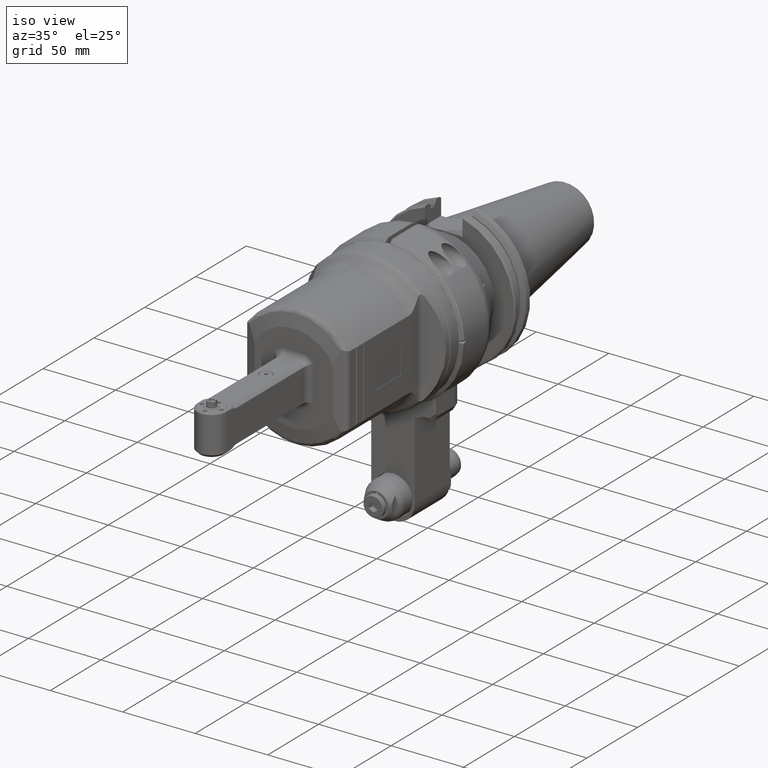
[diagram: clean part render]
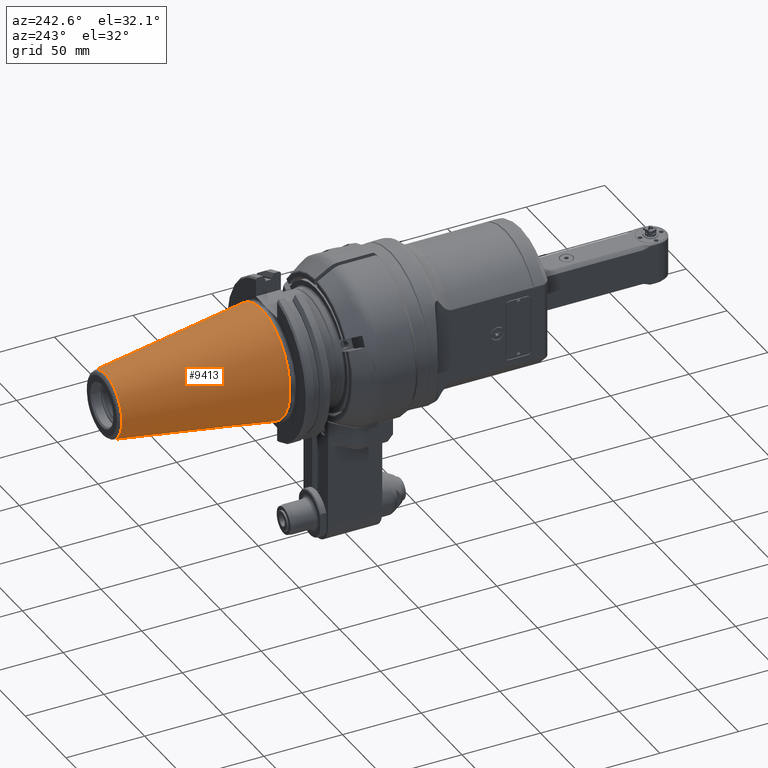
[diagram: tour spotlight — one face highlighted and labeled with its STEP entity id]
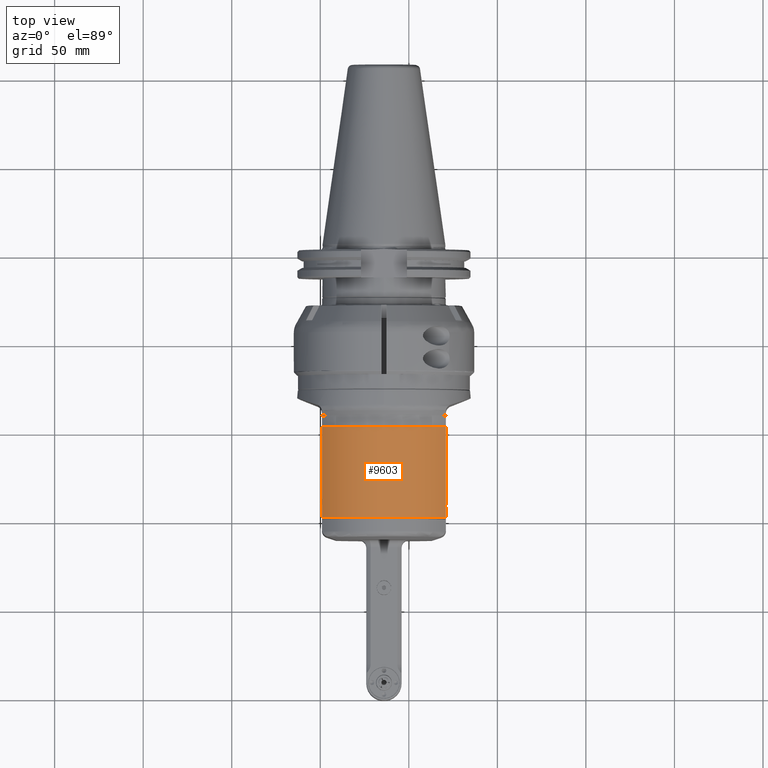
[diagram: tour spotlight — one face highlighted and labeled with its STEP entity id]
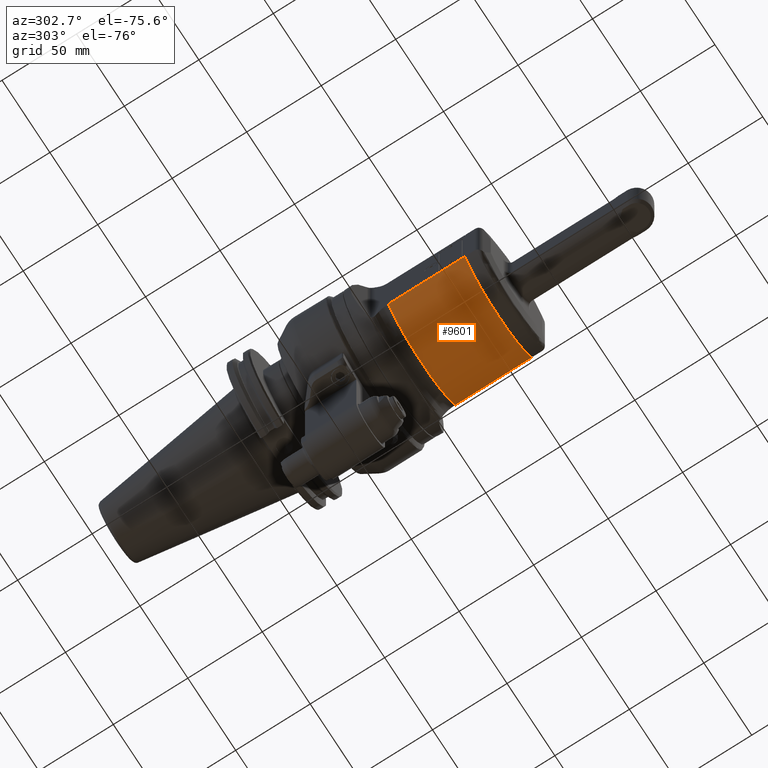
[diagram: tour spotlight — one face highlighted and labeled with its STEP entity id]
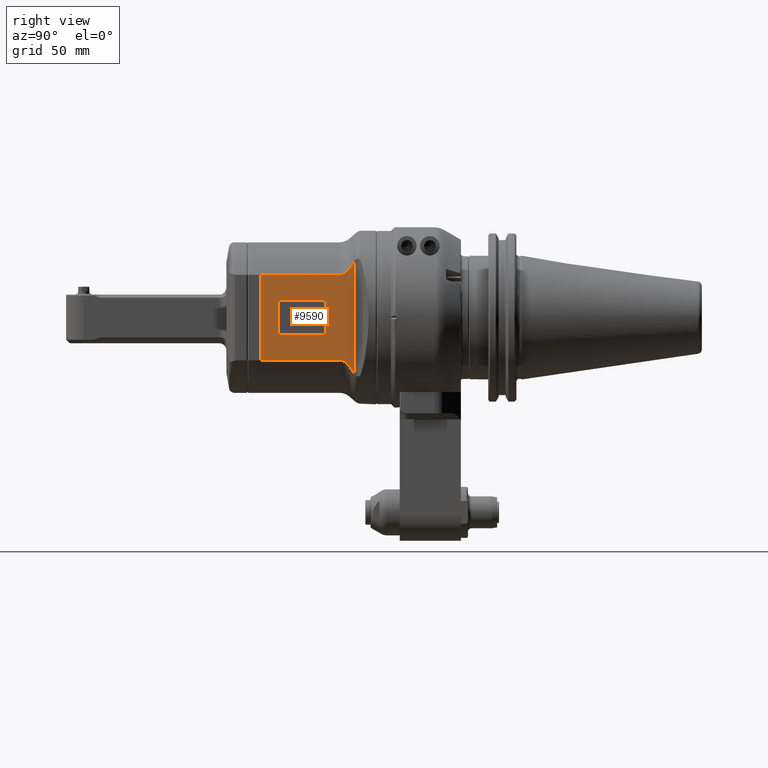
[diagram: tour spotlight — one face highlighted and labeled with its STEP entity id]
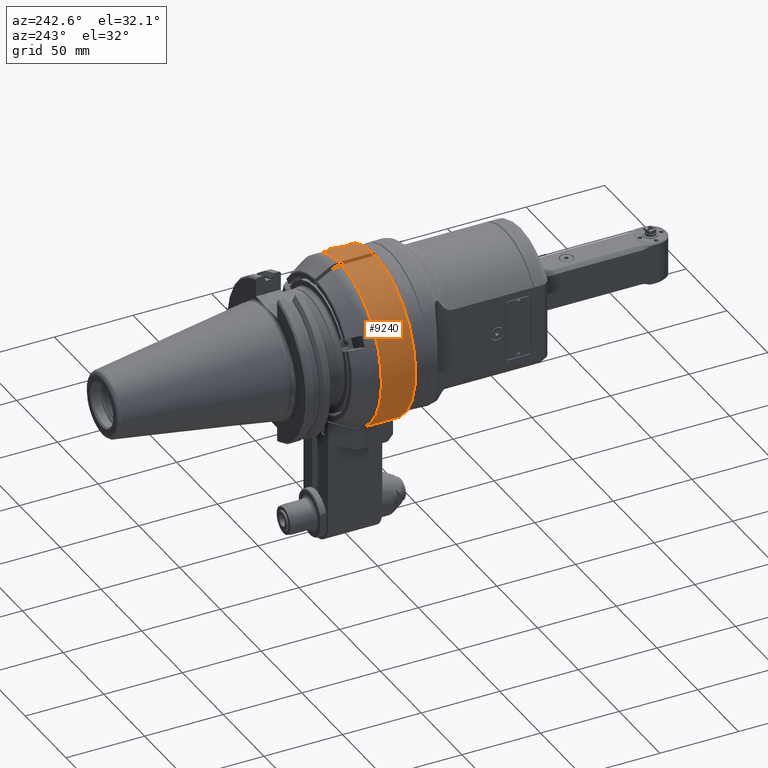
[diagram: tour spotlight — one face highlighted and labeled with its STEP entity id]
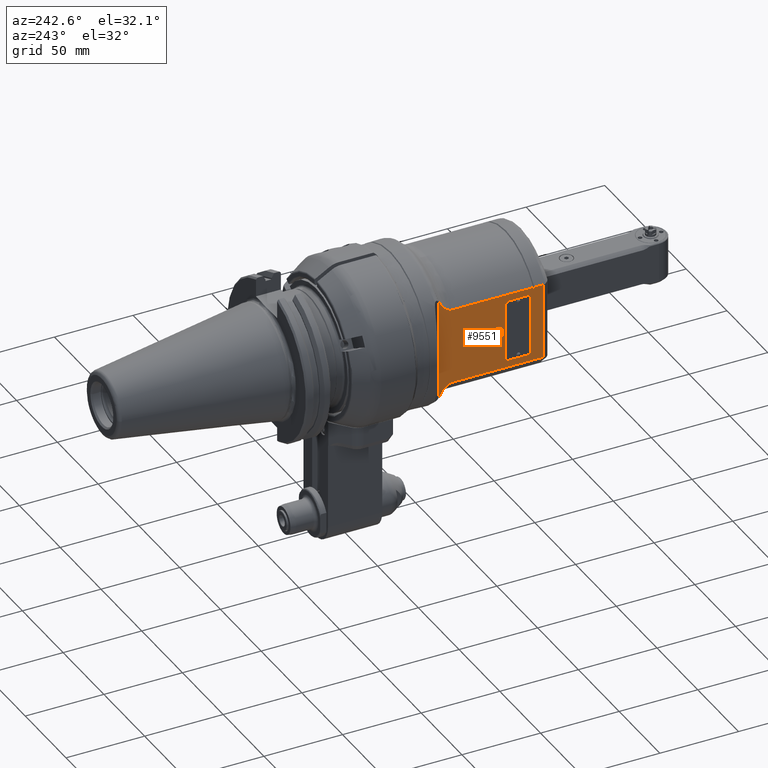
[diagram: tour spotlight — one face highlighted and labeled with its STEP entity id]
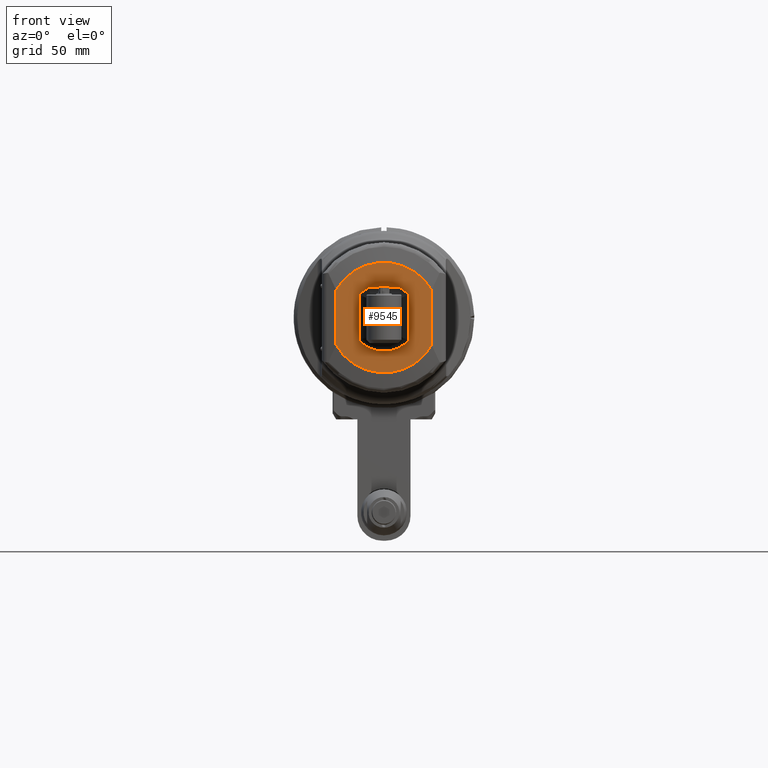
[diagram: tour spotlight — one face highlighted and labeled with its STEP entity id]
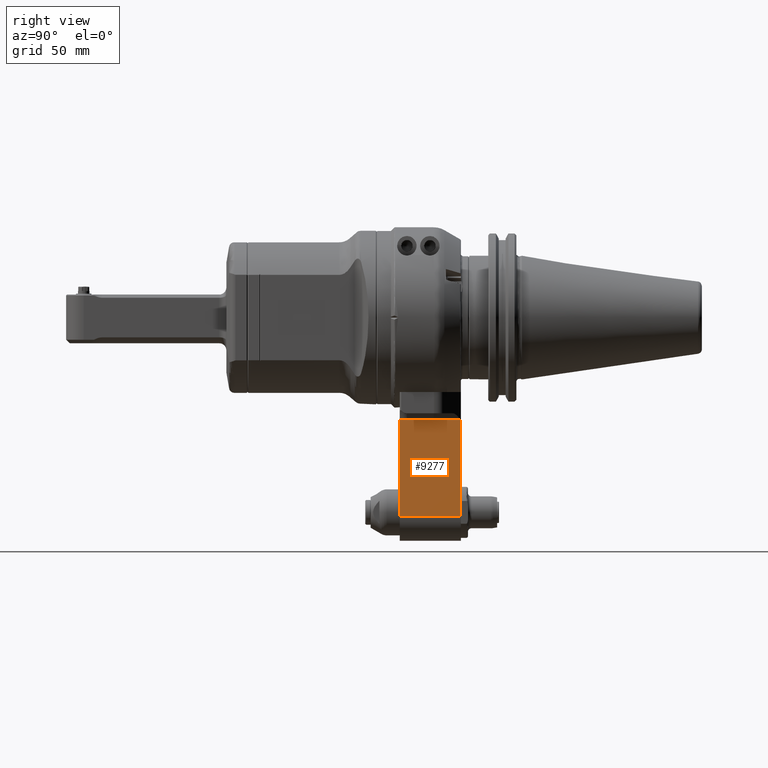
[diagram: tour spotlight — one face highlighted and labeled with its STEP entity id]
A machine part: a face-by-face anatomy tour. The part has 566 B-rep faces; the first image is the clean iso view, then the 8 largest visible faces are spotlighted one at a time (largest first), each with its STEP entity span.

Face 1 — auxiliary view, entity #9413. In plain terms, the highlighted conical surface has half-angle 8.297 deg.
Definition (entity closure, byte-faithful):
#307=CONICAL_SURFACE('',#10340,27.67265681028,0.144812411498922);
#672=LINE('',#16008,#1324);
#1324=VECTOR('',#12360,27.67265681028);
#2431=FACE_OUTER_BOUND('',#3035,.T.);
#3035=EDGE_LOOP('',(#7660,#7661,#7662,#7663,#7664,#7665));
#3664=CIRCLE('',#10338,34.925);
#3665=CIRCLE('',#10339,34.925);
#3666=CIRCLE('',#10341,20.42031362057);
#3667=CIRCLE('',#10342,20.42031362057);
#4375=VERTEX_POINT('',#16001);
#4376=VERTEX_POINT('',#16002);
#4377=VERTEX_POINT('',#16007);
#4378=VERTEX_POINT('',#16009);
#5545=EDGE_CURVE('',#4375,#4376,#3664,.T.);
#5547=EDGE_CURVE('',#4376,#4375,#3665,.T.);
#5548=EDGE_CURVE('',#4375,#4377,#672,.T.);
#5549=EDGE_CURVE('',#4378,#4377,#3666,.T.);
#5550=EDGE_CURVE('',#4377,#4378,#3667,.T.);
#7660=ORIENTED_EDGE('',*,*,#5545,.F.);
#7661=ORIENTED_EDGE('',*,*,#5548,.T.);
#7662=ORIENTED_EDGE('',*,*,#5549,.F.);
#7663=ORIENTED_EDGE('',*,*,#5550,.F.);
#7664=ORIENTED_EDGE('',*,*,#5548,.F.);
#7665=ORIENTED_EDGE('',*,*,#5547,.F.);
#9413=ADVANCED_FACE('',(#2431),#307,.T.);
#10338=AXIS2_PLACEMENT_3D('',#16003,#12353,#12354);
#10339=AXIS2_PLACEMENT_3D('',#16005,#12356,#12357);
#10340=AXIS2_PLACEMENT_3D('',#16006,#12358,#12359);
#10341=AXIS2_PLACEMENT_3D('',#16010,#12361,#12362);
#10342=AXIS2_PLACEMENT_3D('',#16011,#12363,#12364);
#12353=DIRECTION('center_axis',(0.,-1.,0.));
#12354=DIRECTION('ref_axis',(0.,0.,1.));
#12356=DIRECTION('center_axis',(0.,-1.,0.));
#12357=DIRECTION('ref_axis',(0.,0.,1.));
#12358=DIRECTION('center_axis',(0.,-1.,0.));
#12359=DIRECTION('ref_axis',(0.,0.,1.));
#12360=DIRECTION('',(-1.76724869581176E-17,0.98953299358046,0.144306807239621));
#12361=DIRECTION('center_axis',(0.,1.,0.));
#12362=DIRECTION('ref_axis',(0.,0.,1.));
#12363=DIRECTION('center_axis',(0.,1.,0.));
#12364=DIRECTION('ref_axis',(0.,0.,1.));
#16001=CARTESIAN_POINT('',(0.,74.,-34.925));
#16002=CARTESIAN_POINT('',(4.27707894602218E-15,73.9999999999999,34.9250000000004));
#16003=CARTESIAN_POINT('Origin',(0.,74.,0.));
#16005=CARTESIAN_POINT('Origin',(0.,74.,0.));
#16006=CARTESIAN_POINT('Origin',(0.,123.730383509,0.));
#16007=CARTESIAN_POINT('',(2.50076717129998E-15,173.460767018098,-20.4203136205566));
#16008=CARTESIAN_POINT('',(3.38892305866126E-15,123.730383509,-27.67265681028));
#16009=CARTESIAN_POINT('',(-20.42031362057,173.4607670181,-2.50076717130162E-15));
#16010=CARTESIAN_POINT('Origin',(0.,173.4607670181,0.));
#16011=CARTESIAN_POINT('Origin',(0.,173.4607670181,0.));

Face 2 — top view, entity #9603. In plain terms, the highlighted cylindrical surface (partial cylindrical patch) has radius 42.5 mm, axis along (0, -1, -0).
Definition (entity closure, byte-faithful):
#846=LINE('',#17290,#1498);
#900=LINE('',#17600,#1552);
#913=LINE('',#17682,#1565);
#1498=VECTOR('',#13066,51.26935112619);
#1552=VECTOR('',#13274,44.46935112619);
#1565=VECTOR('',#13343,6.2);
#1800=CYLINDRICAL_SURFACE('',#10712,42.5);
#2621=FACE_OUTER_BOUND('',#3258,.T.);
#3258=EDGE_LOOP('',(#8610,#8611,#8612,#8613,#8614,#8615,#8616));
#3841=CIRCLE('',#10713,45.9685052896253);
#3842=CIRCLE('',#10714,45.9685052893156);
#3843=CIRCLE('',#10715,42.5);
#3844=CIRCLE('',#10716,42.5);
#4629=VERTEX_POINT('',#17285);
#4630=VERTEX_POINT('',#17289);
#4696=VERTEX_POINT('',#17586);
#4697=VERTEX_POINT('',#17599);
#4719=VERTEX_POINT('',#17680);
#4720=VERTEX_POINT('',#17681);
#4721=VERTEX_POINT('',#17686);
#5913=EDGE_CURVE('',#4630,#4629,#846,.T.);
#6016=EDGE_CURVE('',#4697,#4696,#900,.T.);
#6047=EDGE_CURVE('',#4719,#4720,#913,.T.);
#6050=EDGE_CURVE('',#4721,#4720,#3841,.T.);
#6051=EDGE_CURVE('',#4697,#4721,#3842,.T.);
#6052=EDGE_CURVE('',#4630,#4696,#3843,.T.);
#6053=EDGE_CURVE('',#4719,#4629,#3844,.T.);
#8610=ORIENTED_EDGE('',*,*,#6047,.T.);
#8611=ORIENTED_EDGE('',*,*,#6050,.F.);
#8612=ORIENTED_EDGE('',*,*,#6051,.F.);
#8613=ORIENTED_EDGE('',*,*,#6016,.T.);
#8614=ORIENTED_EDGE('',*,*,#6052,.F.);
#8615=ORIENTED_EDGE('',*,*,#5913,.T.);
#8616=ORIENTED_EDGE('',*,*,#6053,.F.);
#9603=ADVANCED_FACE('',(#2621),#1800,.T.);
#10712=AXIS2_PLACEMENT_3D('',#17685,#13346,#13347);
#10713=AXIS2_PLACEMENT_3D('',#17687,#13348,#13349);
#10714=AXIS2_PLACEMENT_3D('',#17688,#13350,#13351);
#10715=AXIS2_PLACEMENT_3D('',#17689,#13352,#13353);
#10716=AXIS2_PLACEMENT_3D('',#17690,#13354,#13355);
#13066=DIRECTION('',(1.,0.,0.));
#13274=DIRECTION('',(-1.,0.,0.));
#13343=DIRECTION('',(-1.,0.,0.));
#13346=DIRECTION('center_axis',(1.,0.,0.));
#13347=DIRECTION('ref_axis',(0.,-1.,0.));
#13348=DIRECTION('center_axis',(-0.707101993470199,-6.68325858690192E-6,
0.707111568838896));
#13349=DIRECTION('ref_axis',(0.506501891423025,-0.697800327317038,0.506488437361736));
#13350=DIRECTION('center_axis',(0.707101993465429,-6.68326527465731E-6,
0.707111568843665));
#13351=DIRECTION('ref_axis',(-0.499975684016396,-0.70715067985829,0.499962229941718));
#13352=DIRECTION('center_axis',(-1.,0.,0.));
#13353=DIRECTION('ref_axis',(0.,-0.567273574176089,-0.823529411764684));
#13354=DIRECTION('center_axis',(1.,0.,0.));
#13355=DIRECTION('ref_axis',(0.,-0.567273574176089,0.823529411764684));
#17285=CARTESIAN_POINT('',(68.5,-24.10912690248,-35.));
#17289=CARTESIAN_POINT('',(17.23064887381,-24.10912690248,-35.));
#17290=CARTESIAN_POINT('',(17.23064887381,-24.10912690248,-35.));
#17586=CARTESIAN_POINT('',(17.23064887381,-24.10912690248,35.));
#17599=CARTESIAN_POINT('',(61.7,-24.10912690248,35.));
#17600=CARTESIAN_POINT('',(61.7,-24.10912690248,35.));
#17680=CARTESIAN_POINT('',(68.5,-24.10912690248,35.));
#17681=CARTESIAN_POINT('',(62.3,-24.10912690248,35.));
#17682=CARTESIAN_POINT('',(68.5,-24.10912690248,35.));
#17685=CARTESIAN_POINT('Origin',(22.25229287192,0.,0.));
#17686=CARTESIAN_POINT('',(62.,-24.53894863273,34.7));
#17687=CARTESIAN_POINT('Origin',(39.0168651249155,7.96771113489473,11.7174835880041));
#17688=CARTESIAN_POINT('Origin',(84.9831348752369,7.96771113467726,11.7174835884684));
#17689=CARTESIAN_POINT('Origin',(17.23064887381,0.,0.));
#17690=CARTESIAN_POINT('Origin',(68.5,0.,0.));

Face 3 — auxiliary view, entity #9601. In plain terms, the highlighted cylindrical surface (partial cylindrical patch) has radius 42.5 mm, axis along (0, -1, -0).
Definition (entity closure, byte-faithful):
#843=LINE('',#17269,#1495);
#902=LINE('',#17604,#1554);
#912=LINE('',#17674,#1564);
#1495=VECTOR('',#13063,51.26935112619);
#1554=VECTOR('',#13276,44.46935112619);
#1564=VECTOR('',#13334,6.2);
#1799=CYLINDRICAL_SURFACE('',#10707,42.5);
#2619=FACE_OUTER_BOUND('',#3256,.T.);
#3256=EDGE_LOOP('',(#8599,#8600,#8601,#8602,#8603,#8604,#8605));
#3837=CIRCLE('',#10706,42.5);
#3838=CIRCLE('',#10708,42.5);
#3839=CIRCLE('',#10709,45.9685052894382);
#3840=CIRCLE('',#10710,45.9685052897482);
#4623=VERTEX_POINT('',#17255);
#4624=VERTEX_POINT('',#17268);
#4698=VERTEX_POINT('',#17601);
#4699=VERTEX_POINT('',#17603);
#4716=VERTEX_POINT('',#17672);
#4717=VERTEX_POINT('',#17673);
#4718=VERTEX_POINT('',#17676);
#5906=EDGE_CURVE('',#4624,#4623,#843,.T.);
#6018=EDGE_CURVE('',#4699,#4698,#902,.T.);
#6042=EDGE_CURVE('',#4699,#4623,#3837,.T.);
#6043=EDGE_CURVE('',#4716,#4717,#912,.T.);
#6044=EDGE_CURVE('',#4624,#4717,#3838,.T.);
#6045=EDGE_CURVE('',#4718,#4698,#3839,.T.);
#6046=EDGE_CURVE('',#4716,#4718,#3840,.T.);
#8599=ORIENTED_EDGE('',*,*,#6043,.T.);
#8600=ORIENTED_EDGE('',*,*,#6044,.F.);
#8601=ORIENTED_EDGE('',*,*,#5906,.T.);
#8602=ORIENTED_EDGE('',*,*,#6042,.F.);
#8603=ORIENTED_EDGE('',*,*,#6018,.T.);
#8604=ORIENTED_EDGE('',*,*,#6045,.F.);
#8605=ORIENTED_EDGE('',*,*,#6046,.F.);
#9601=ADVANCED_FACE('',(#2619),#1799,.T.);
#10706=AXIS2_PLACEMENT_3D('',#17670,#13330,#13331);
#10707=AXIS2_PLACEMENT_3D('',#17671,#13332,#13333);
#10708=AXIS2_PLACEMENT_3D('',#17675,#13335,#13336);
#10709=AXIS2_PLACEMENT_3D('',#17677,#13337,#13338);
#10710=AXIS2_PLACEMENT_3D('',#17678,#13339,#13340);
#13063=DIRECTION('',(-1.,0.,0.));
#13276=DIRECTION('',(1.,0.,0.));
#13330=DIRECTION('center_axis',(-1.,0.,0.));
#13331=DIRECTION('ref_axis',(0.,0.567273574176089,0.823529411764684));
#13332=DIRECTION('center_axis',(1.,0.,0.));
#13333=DIRECTION('ref_axis',(0.,1.,1.22464679914735E-16));
#13334=DIRECTION('',(1.,0.,0.));
#13335=DIRECTION('center_axis',(1.,0.,0.));
#13336=DIRECTION('ref_axis',(0.,0.567273574176089,-0.823529411764684));
#13337=DIRECTION('center_axis',(0.707101993464642,6.6832663878003E-6,0.707111568844453));
#13338=DIRECTION('ref_axis',(-0.506501891430905,0.697800327316969,0.50648843735395));
#13339=DIRECTION('center_axis',(-0.707101993469411,6.68325970004491E-6,
0.707111568839684));
#13340=DIRECTION('ref_axis',(0.499975684010862,0.707150679858201,0.499962229947377));
#17255=CARTESIAN_POINT('',(17.23064887381,24.10912690248,-35.));
#17268=CARTESIAN_POINT('',(68.5,24.10912690248,-35.));
#17269=CARTESIAN_POINT('',(68.5,24.10912690248,-35.));
#17601=CARTESIAN_POINT('',(61.7,24.10912690248,35.));
#17603=CARTESIAN_POINT('',(17.23064887381,24.10912690248,35.));
#17604=CARTESIAN_POINT('',(17.23064887381,24.10912690248,35.));
#17670=CARTESIAN_POINT('Origin',(17.23064887381,0.,0.));
#17671=CARTESIAN_POINT('Origin',(22.25229287192,0.,0.));
#17672=CARTESIAN_POINT('',(62.3,24.10912690248,35.));
#17673=CARTESIAN_POINT('',(68.5,24.10912690248,35.));
#17674=CARTESIAN_POINT('',(62.3,24.10912690248,35.));
#17675=CARTESIAN_POINT('Origin',(68.5,0.,0.));
#17676=CARTESIAN_POINT('',(62.,24.53894863273,34.7));
#17677=CARTESIAN_POINT('Origin',(84.9831348753521,-7.96771113476106,11.7174835884568));
#17678=CARTESIAN_POINT('Origin',(39.0168651248012,-7.96771113497912,11.717483587992));

Face 4 — right view, entity #9590. In plain terms, the highlighted planar face has unit normal (-1, -0, 0).
Definition (entity closure, byte-faithful):
#220=B_SPLINE_CURVE_WITH_KNOTS('',3,(#17532,#17533,#17534,#17535),
 .UNSPECIFIED.,.F.,.F.,(4,4),(3.62931751590129,3.65970672976921),
 .UNSPECIFIED.);
#221=B_SPLINE_CURVE_WITH_KNOTS('',3,(#17555,#17556,#17557,#17558),
 .UNSPECIFIED.,.F.,.F.,(4,4),(-0.437378207596266,-0.406988993729126),
 .UNSPECIFIED.);
#223=B_SPLINE_CURVE_WITH_KNOTS('',3,(#17578,#17579,#17580,#17581,#17582,
#17583),.UNSPECIFIED.,.F.,.F.,(4,1,1,4),(0.,0.3333333333333,0.6666666666667,
1.),.UNSPECIFIED.);
#224=B_SPLINE_CURVE_WITH_KNOTS('',3,(#17587,#17588,#17589,#17590,#17591,
#17592,#17593,#17594,#17595,#17596,#17597,#17598),.UNSPECIFIED.,.F.,.F.,
(4,2,2,2,2,4),(2.45139975324871,2.54345209518972,2.73720136147644,2.93095062776315,
3.07949233485641,3.21349613324655),.UNSPECIFIED.);
#225=B_SPLINE_CURVE_WITH_KNOTS('',3,(#17606,#17607,#17608,#17609,#17610,
#17611,#17612,#17613,#17614,#17615,#17616,#17617),.UNSPECIFIED.,.F.,.F.,
(4,2,2,2,2,4),(3.21349613324655,3.34749993163669,3.49604163872995,3.68979090501666,
3.88354017130337,3.97559251324439),.UNSPECIFIED.);
#226=B_SPLINE_CURVE_WITH_KNOTS('',3,(#17618,#17619,#17620,#17621,#17622,
#17623),.UNSPECIFIED.,.F.,.F.,(4,1,1,4),(0.,0.3333333333333,0.6666666666667,
1.),.UNSPECIFIED.);
#899=LINE('',#17585,#1551);
#900=LINE('',#17600,#1552);
#901=LINE('',#17602,#1553);
#902=LINE('',#17604,#1554);
#903=LINE('',#17626,#1555);
#904=LINE('',#17630,#1556);
#905=LINE('',#17634,#1557);
#906=LINE('',#17638,#1558);
#1551=VECTOR('',#13273,63.78867892408);
#1552=VECTOR('',#13274,44.46935112619);
#1553=VECTOR('',#13275,48.21825380496);
#1554=VECTOR('',#13276,44.46935112619);
#1555=VECTOR('',#13277,17.5);
#1556=VECTOR('',#13280,24.5);
#1557=VECTOR('',#13283,17.5);
#1558=VECTOR('',#13286,24.5);
#1897=FACE_BOUND('',#3244,.T.);
#2108=PLANE('',#10683);
#2608=FACE_OUTER_BOUND('',#3243,.T.);
#3243=EDGE_LOOP('',(#8542,#8543,#8544,#8545,#8546,#8547,#8548,#8549,#8550,
#8551));
#3244=EDGE_LOOP('',(#8552,#8553,#8554,#8555,#8556,#8557,#8558,#8559));
#3825=CIRCLE('',#10684,1.);
#3826=CIRCLE('',#10685,1.);
#3827=CIRCLE('',#10686,1.);
#3828=CIRCLE('',#10687,1.);
#4686=VERTEX_POINT('',#17514);
#4687=VERTEX_POINT('',#17531);
#4693=VERTEX_POINT('',#17552);
#4694=VERTEX_POINT('',#17554);
#4695=VERTEX_POINT('',#17576);
#4696=VERTEX_POINT('',#17586);
#4697=VERTEX_POINT('',#17599);
#4698=VERTEX_POINT('',#17601);
#4699=VERTEX_POINT('',#17603);
#4700=VERTEX_POINT('',#17605);
#4701=VERTEX_POINT('',#17624);
#4702=VERTEX_POINT('',#17625);
#4703=VERTEX_POINT('',#17627);
#4704=VERTEX_POINT('',#17629);
#4705=VERTEX_POINT('',#17631);
#4706=VERTEX_POINT('',#17633);
#4707=VERTEX_POINT('',#17635);
#4708=VERTEX_POINT('',#17637);
#5999=EDGE_CURVE('',#4686,#4687,#220,.T.);
#6010=EDGE_CURVE('',#4694,#4693,#221,.T.);
#6013=EDGE_CURVE('',#4695,#4693,#223,.T.);
#6014=EDGE_CURVE('',#4686,#4694,#899,.T.);
#6015=EDGE_CURVE('',#4695,#4696,#224,.T.);
#6016=EDGE_CURVE('',#4697,#4696,#900,.T.);
#6017=EDGE_CURVE('',#4697,#4698,#901,.T.);
#6018=EDGE_CURVE('',#4699,#4698,#902,.T.);
#6019=EDGE_CURVE('',#4699,#4700,#225,.T.);
#6020=EDGE_CURVE('',#4687,#4700,#226,.T.);
#6021=EDGE_CURVE('',#4701,#4702,#903,.T.);
#6022=EDGE_CURVE('',#4702,#4703,#3825,.T.);
#6023=EDGE_CURVE('',#4703,#4704,#904,.T.);
#6024=EDGE_CURVE('',#4704,#4705,#3826,.T.);
#6025=EDGE_CURVE('',#4705,#4706,#905,.T.);
#6026=EDGE_CURVE('',#4706,#4707,#3827,.T.);
#6027=EDGE_CURVE('',#4707,#4708,#906,.T.);
#6028=EDGE_CURVE('',#4708,#4701,#3828,.T.);
#8542=ORIENTED_EDGE('',*,*,#6014,.T.);
#8543=ORIENTED_EDGE('',*,*,#6010,.T.);
#8544=ORIENTED_EDGE('',*,*,#6013,.F.);
#8545=ORIENTED_EDGE('',*,*,#6015,.T.);
#8546=ORIENTED_EDGE('',*,*,#6016,.F.);
#8547=ORIENTED_EDGE('',*,*,#6017,.T.);
#8548=ORIENTED_EDGE('',*,*,#6018,.F.);
#8549=ORIENTED_EDGE('',*,*,#6019,.T.);
#8550=ORIENTED_EDGE('',*,*,#6020,.F.);
#8551=ORIENTED_EDGE('',*,*,#5999,.F.);
#8552=ORIENTED_EDGE('',*,*,#6021,.T.);
#8553=ORIENTED_EDGE('',*,*,#6022,.T.);
#8554=ORIENTED_EDGE('',*,*,#6023,.T.);
#8555=ORIENTED_EDGE('',*,*,#6024,.T.);
#8556=ORIENTED_EDGE('',*,*,#6025,.T.);
#8557=ORIENTED_EDGE('',*,*,#6026,.T.);
#8558=ORIENTED_EDGE('',*,*,#6027,.T.);
#8559=ORIENTED_EDGE('',*,*,#6028,.T.);
#9590=ADVANCED_FACE('',(#2608,#1897),#2108,.F.);
#10683=AXIS2_PLACEMENT_3D('',#17584,#13271,#13272);
#10684=AXIS2_PLACEMENT_3D('',#17628,#13278,#13279);
#10685=AXIS2_PLACEMENT_3D('',#17632,#13281,#13282);
#10686=AXIS2_PLACEMENT_3D('',#17636,#13284,#13285);
#10687=AXIS2_PLACEMENT_3D('',#17639,#13287,#13288);
#13271=DIRECTION('center_axis',(0.,0.,-1.));
#13272=DIRECTION('ref_axis',(1.,0.,0.));
#13273=DIRECTION('',(0.,-1.,0.));
#13274=DIRECTION('',(-1.,0.,0.));
#13275=DIRECTION('',(0.,1.,0.));
#13276=DIRECTION('',(1.,0.,0.));
#13277=DIRECTION('',(0.,-1.,0.));
#13278=DIRECTION('center_axis',(0.,0.,-1.));
#13279=DIRECTION('ref_axis',(1.,0.,0.));
#13280=DIRECTION('',(-1.,0.,0.));
#13281=DIRECTION('center_axis',(0.,0.,-1.));
#13282=DIRECTION('ref_axis',(0.,-1.,0.));
#13283=DIRECTION('',(0.,1.,0.));
#13284=DIRECTION('center_axis',(0.,0.,-1.));
#13285=DIRECTION('ref_axis',(-1.,0.,0.));
#13286=DIRECTION('',(1.,0.,0.));
#13287=DIRECTION('center_axis',(0.,0.,-1.));
#13288=DIRECTION('ref_axis',(0.,1.,0.));
#17514=CARTESIAN_POINT('',(8.639611498124,31.89433946204,35.));
#17531=CARTESIAN_POINT('',(8.464251895864,32.16746012969,35.));
#17532=CARTESIAN_POINT('Ctrl Pts',(8.63961149812391,31.8943394620399,35.));
#17533=CARTESIAN_POINT('Ctrl Pts',(8.58282804336514,31.9876279463811,35.));
#17534=CARTESIAN_POINT('Ctrl Pts',(8.52425072718911,32.0788569112063,35.));
#17535=CARTESIAN_POINT('Ctrl Pts',(8.46425189586176,32.1674601296885,35.));
#17552=CARTESIAN_POINT('',(8.464251895864,-32.16746012968,35.));
#17554=CARTESIAN_POINT('',(8.639611498124,-31.89433946204,35.));
#17555=CARTESIAN_POINT('Ctrl Pts',(8.63961149812391,-31.8943394620399,35.));
#17556=CARTESIAN_POINT('Ctrl Pts',(8.58282804336661,-31.9876279463787,35.));
#17557=CARTESIAN_POINT('Ctrl Pts',(8.52425072719214,-32.0788569112016,35.));
#17558=CARTESIAN_POINT('Ctrl Pts',(8.46425189586641,-32.1674601296816,35.));
#17576=CARTESIAN_POINT('',(10.86893233129,-28.49665727236,35.));
#17578=CARTESIAN_POINT('Ctrl Pts',(10.86893233129,-28.49665727236,35.));
#17579=CARTESIAN_POINT('Ctrl Pts',(10.62185016839,-28.88771695501,35.));
#17580=CARTESIAN_POINT('Ctrl Pts',(10.11443992006,-29.68110112606,35.));
#17581=CARTESIAN_POINT('Ctrl Pts',(9.314663645246,-30.9024413715,35.));
#17582=CARTESIAN_POINT('Ctrl Pts',(8.75244439556,-31.74187212321,35.));
#17583=CARTESIAN_POINT('Ctrl Pts',(8.464251895864,-32.16746012968,35.));
#17584=CARTESIAN_POINT('Origin',(6.930692048084,-58.8000024,35.));
#17585=CARTESIAN_POINT('',(8.639611498124,31.89433946204,35.));
#17586=CARTESIAN_POINT('',(17.23064887381,-24.10912690248,35.));
#17587=CARTESIAN_POINT('Ctrl Pts',(10.8689323312923,-28.4966572723615,35.));
#17588=CARTESIAN_POINT('Ctrl Pts',(11.0420967701005,-28.2225879923673,35.));
#17589=CARTESIAN_POINT('Ctrl Pts',(11.2207766785795,-27.9599342223762,35.));
#17590=CARTESIAN_POINT('Ctrl Pts',(11.7826258605269,-27.1905776804632,35.));
#17591=CARTESIAN_POINT('Ctrl Pts',(12.2393118399198,-26.6477712329798,35.));
#17592=CARTESIAN_POINT('Ctrl Pts',(13.2538868481057,-25.673981849847,35.));
#17593=CARTESIAN_POINT('Ctrl Pts',(13.8130255457707,-25.24430176017,35.));
#17594=CARTESIAN_POINT('Ctrl Pts',(14.8010930496265,-24.673745061638,35.));
#17595=CARTESIAN_POINT('Ctrl Pts',(15.3457775780952,-24.4363572262594,35.));
#17596=CARTESIAN_POINT('Ctrl Pts',(16.253263635225,-24.1843832919984,35.));
#17597=CARTESIAN_POINT('Ctrl Pts',(16.7839695458429,-24.1091269024824,35.));
#17598=CARTESIAN_POINT('Ctrl Pts',(17.23064887381,-24.1091269024824,35.));
#17599=CARTESIAN_POINT('',(61.7,-24.10912690248,35.));
#17600=CARTESIAN_POINT('',(61.7,-24.10912690248,35.));
#17601=CARTESIAN_POINT('',(61.7,24.10912690248,35.));
#17602=CARTESIAN_POINT('',(61.7,-24.10912690248,35.));
#17603=CARTESIAN_POINT('',(17.23064887381,24.10912690248,35.));
#17604=CARTESIAN_POINT('',(17.23064887381,24.10912690248,35.));
#17605=CARTESIAN_POINT('',(10.86893233129,28.49665727236,35.));
#17606=CARTESIAN_POINT('Ctrl Pts',(17.23064887381,24.1091269024824,35.));
#17607=CARTESIAN_POINT('Ctrl Pts',(16.7839695458429,24.1091269024824,35.));
#17608=CARTESIAN_POINT('Ctrl Pts',(16.253263635225,24.1843832919984,35.));
#17609=CARTESIAN_POINT('Ctrl Pts',(15.3457775780952,24.4363572262594,35.));
#17610=CARTESIAN_POINT('Ctrl Pts',(14.8010930496265,24.673745061638,35.));
#17611=CARTESIAN_POINT('Ctrl Pts',(13.8130255457707,25.24430176017,35.));
#17612=CARTESIAN_POINT('Ctrl Pts',(13.2538868481057,25.673981849847,35.));
#17613=CARTESIAN_POINT('Ctrl Pts',(12.2393118399198,26.6477712329798,35.));
#17614=CARTESIAN_POINT('Ctrl Pts',(11.7826258605269,27.1905776804632,35.));
#17615=CARTESIAN_POINT('Ctrl Pts',(11.2207766785795,27.9599342223762,35.));
#17616=CARTESIAN_POINT('Ctrl Pts',(11.0420967701005,28.2225879923673,35.));
#17617=CARTESIAN_POINT('Ctrl Pts',(10.8689323312923,28.4966572723615,35.));
#17618=CARTESIAN_POINT('Ctrl Pts',(8.464251895864,32.16746012969,35.));
#17619=CARTESIAN_POINT('Ctrl Pts',(8.752694837023,31.74150228401,35.));
#17620=CARTESIAN_POINT('Ctrl Pts',(9.315240144977,30.90157377589,35.));
#17621=CARTESIAN_POINT('Ctrl Pts',(10.11497899031,29.68026542677,35.));
#17622=CARTESIAN_POINT('Ctrl Pts',(10.62207769022,28.88735685368,35.));
#17623=CARTESIAN_POINT('Ctrl Pts',(10.86893233129,28.49665727236,35.));
#17624=CARTESIAN_POINT('',(51.7,8.75,35.));
#17625=CARTESIAN_POINT('',(51.7,-8.75,35.));
#17626=CARTESIAN_POINT('',(51.7,8.75,35.));
#17627=CARTESIAN_POINT('',(50.7,-9.75,35.));
#17628=CARTESIAN_POINT('Origin',(50.7,-8.75,35.));
#17629=CARTESIAN_POINT('',(26.2,-9.75,35.));
#17630=CARTESIAN_POINT('',(50.7,-9.75,35.));
#17631=CARTESIAN_POINT('',(25.2,-8.75,35.));
#17632=CARTESIAN_POINT('Origin',(26.2,-8.75,35.));
#17633=CARTESIAN_POINT('',(25.2,8.75,35.));
#17634=CARTESIAN_POINT('',(25.2,-8.75,35.));
#17635=CARTESIAN_POINT('',(26.2,9.75,35.));
#17636=CARTESIAN_POINT('Origin',(26.2,8.75,35.));
#17637=CARTESIAN_POINT('',(50.7,9.75,35.));
#17638=CARTESIAN_POINT('',(26.2,9.75,35.));
#17639=CARTESIAN_POINT('Origin',(50.7,8.75,35.));

Face 5 — auxiliary view, entity #9240. In plain terms, the highlighted cylindrical surface (partial cylindrical patch) has radius 51 mm, axis along (0, -1, 0).
Definition (entity closure, byte-faithful):
#33=ELLIPSE('',#10013,144.249783362042,51.);
#34=ELLIPSE('',#10014,144.249783362042,51.);
#152=B_SPLINE_CURVE_WITH_KNOTS('',3,(#14907,#14908,#14909,#14910,#14911,
#14912),.UNSPECIFIED.,.F.,.F.,(4,2,4),(-0.220144328878827,-0.201175489980687,
0.),.UNSPECIFIED.);
#153=B_SPLINE_CURVE_WITH_KNOTS('',3,(#14914,#14915,#14916,#14917,#14918,
#14919,#14920,#14921,#14922,#14923,#14924,#14925,#14926,#14927,#14928,#14929,
#14930,#14931,#14932,#14933,#14934,#14935,#14936,#14937,#14938,#14939),
 .UNSPECIFIED.,.F.,.F.,(4,2,2,2,2,2,2,2,2,2,2,2,4),(0.,0.201175489980687,
0.402350979961374,0.726790310303929,1.05122964064648,1.44743687444551,1.84364410824453,
2.06341028648597,2.1732933756067,2.28317646472742,2.39305955384814,2.50294264296886,
2.52975105249028),.UNSPECIFIED.);
#154=B_SPLINE_CURVE_WITH_KNOTS('',3,(#14950,#14951,#14952,#14953,#14954,
#14955,#14956,#14957,#14958,#14959,#14960,#14961,#14962,#14963,#14964,#14965,
#14966,#14967,#14968,#14969,#14970,#14971,#14972),.UNSPECIFIED.,.F.,.F.,
(4,2,2,2,2,3,2,2,2,2,4),(-1.23194682408093,-0.835739590281912,-0.439532356482891,
-0.219766178241446,-0.109883089120723,0.,0.0949450193758139,0.189890038751628,
0.520032016318137,0.865269466584616,1.2105069168511),.UNSPECIFIED.);
#155=B_SPLINE_CURVE_WITH_KNOTS('',3,(#14973,#14974,#14975,#14976,#14977,
#14978,#14979,#14980,#14981,#14982,#14983,#14984,#14985,#14986,#14987,#14988,
#14989,#14990),.UNSPECIFIED.,.F.,.F.,(4,2,2,2,2,2,2,2,4),(1.2105069168511,
1.53494624719365,1.8593855775362,2.06056106751689,2.26173655749758,2.46291204747827,
2.66408753745895,2.98852686780151,3.31296619814406),.UNSPECIFIED.);
#478=LINE('',#14775,#1130);
#483=LINE('',#14828,#1135);
#487=LINE('',#14893,#1139);
#488=LINE('',#14901,#1140);
#489=LINE('',#14903,#1141);
#490=LINE('',#14942,#1142);
#1130=VECTOR('',#11468,18.52539489472);
#1135=VECTOR('',#11479,21.74606325158);
#1139=VECTOR('',#11509,0.6348591411299);
#1140=VECTOR('',#11516,0.6348591411299);
#1141=VECTOR('',#11517,18.52539488314);
#1142=VECTOR('',#11522,21.74606856517);
#1701=CYLINDRICAL_SURFACE('',#10007,51.);
#1847=FACE_BOUND('',#2844,.T.);
#2258=FACE_OUTER_BOUND('',#2843,.T.);
#2843=EDGE_LOOP('',(#6801,#6802,#6803,#6804,#6805,#6806,#6807,#6808,#6809,
#6810,#6811,#6812,#6813,#6814,#6815,#6816,#6817,#6818));
#2844=EDGE_LOOP('',(#6819,#6820));
#3498=CIRCLE('',#9993,51.);
#3507=CIRCLE('',#10006,51.);
#3508=CIRCLE('',#10008,51.);
#3509=CIRCLE('',#10009,51.);
#3510=CIRCLE('',#10010,51.);
#3511=CIRCLE('',#10011,51.);
#3512=CIRCLE('',#10012,51.);
#3513=CIRCLE('',#10015,51.);
#4112=VERTEX_POINT('',#14772);
#4113=VERTEX_POINT('',#14774);
#4114=VERTEX_POINT('',#14789);
#4120=VERTEX_POINT('',#14827);
#4133=VERTEX_POINT('',#14872);
#4134=VERTEX_POINT('',#14873);
#4135=VERTEX_POINT('',#14892);
#4136=VERTEX_POINT('',#14894);
#4137=VERTEX_POINT('',#14896);
#4138=VERTEX_POINT('',#14898);
#4139=VERTEX_POINT('',#14900);
#4140=VERTEX_POINT('',#14902);
#4141=VERTEX_POINT('',#14904);
#4142=VERTEX_POINT('',#14906);
#4143=VERTEX_POINT('',#14913);
#4144=VERTEX_POINT('',#14940);
#4145=VERTEX_POINT('',#14943);
#4146=VERTEX_POINT('',#14945);
#4147=VERTEX_POINT('',#14948);
#4148=VERTEX_POINT('',#14949);
#5124=EDGE_CURVE('',#4113,#4112,#478,.T.);
#5126=EDGE_CURVE('',#4113,#4114,#3498,.T.);
#5134=EDGE_CURVE('',#4120,#4114,#483,.T.);
#5150=EDGE_CURVE('',#4133,#4134,#3507,.T.);
#5153=EDGE_CURVE('',#4112,#4135,#487,.T.);
#5154=EDGE_CURVE('',#4136,#4135,#3508,.T.);
#5155=EDGE_CURVE('',#4137,#4136,#3509,.T.);
#5156=EDGE_CURVE('',#4138,#4137,#3510,.T.);
#5157=EDGE_CURVE('',#4138,#4139,#488,.T.);
#5158=EDGE_CURVE('',#4140,#4139,#489,.T.);
#5159=EDGE_CURVE('',#4141,#4140,#3511,.T.);
#5160=EDGE_CURVE('',#4141,#4142,#152,.T.);
#5161=EDGE_CURVE('',#4142,#4143,#153,.T.);
#5162=EDGE_CURVE('',#4144,#4143,#3512,.T.);
#5163=EDGE_CURVE('',#4144,#4134,#490,.T.);
#5164=EDGE_CURVE('',#4145,#4133,#33,.T.);
#5165=EDGE_CURVE('',#4146,#4145,#34,.T.);
#5166=EDGE_CURVE('',#4120,#4146,#3513,.T.);
#5167=EDGE_CURVE('',#4147,#4148,#154,.T.);
#5168=EDGE_CURVE('',#4148,#4147,#155,.T.);
#6801=ORIENTED_EDGE('',*,*,#5126,.F.);
#6802=ORIENTED_EDGE('',*,*,#5124,.T.);
#6803=ORIENTED_EDGE('',*,*,#5153,.T.);
#6804=ORIENTED_EDGE('',*,*,#5154,.F.);
#6805=ORIENTED_EDGE('',*,*,#5155,.F.);
#6806=ORIENTED_EDGE('',*,*,#5156,.F.);
#6807=ORIENTED_EDGE('',*,*,#5157,.T.);
#6808=ORIENTED_EDGE('',*,*,#5158,.F.);
#6809=ORIENTED_EDGE('',*,*,#5159,.F.);
#6810=ORIENTED_EDGE('',*,*,#5160,.T.);
#6811=ORIENTED_EDGE('',*,*,#5161,.T.);
#6812=ORIENTED_EDGE('',*,*,#5162,.F.);
#6813=ORIENTED_EDGE('',*,*,#5163,.T.);
#6814=ORIENTED_EDGE('',*,*,#5150,.F.);
#6815=ORIENTED_EDGE('',*,*,#5164,.F.);
#6816=ORIENTED_EDGE('',*,*,#5165,.F.);
#6817=ORIENTED_EDGE('',*,*,#5166,.F.);
#6818=ORIENTED_EDGE('',*,*,#5134,.T.);
#6819=ORIENTED_EDGE('',*,*,#5167,.T.);
#6820=ORIENTED_EDGE('',*,*,#5168,.T.);
#9240=ADVANCED_FACE('',(#2258,#1847),#1701,.T.);
#9993=AXIS2_PLACEMENT_3D('',#14790,#11471,#11472);
#10006=AXIS2_PLACEMENT_3D('',#14874,#11505,#11506);
#10007=AXIS2_PLACEMENT_3D('',#14891,#11507,#11508);
#10008=AXIS2_PLACEMENT_3D('',#14895,#11510,#11511);
#10009=AXIS2_PLACEMENT_3D('',#14897,#11512,#11513);
#10010=AXIS2_PLACEMENT_3D('',#14899,#11514,#11515);
#10011=AXIS2_PLACEMENT_3D('',#14905,#11518,#11519);
#10012=AXIS2_PLACEMENT_3D('',#14941,#11520,#11521);
#10013=AXIS2_PLACEMENT_3D('',#14944,#11523,#11524);
#10014=AXIS2_PLACEMENT_3D('',#14946,#11525,#11526);
#10015=AXIS2_PLACEMENT_3D('',#14947,#11527,#11528);
#11468=DIRECTION('',(-4.516308969996E-12,-1.,3.110595817127E-12));
#11471=DIRECTION('center_axis',(0.,1.,0.));
#11472=DIRECTION('ref_axis',(-0.567273574176089,0.,-0.823529411764684));
#11479=DIRECTION('',(4.970251645951E-10,1.,1.462479987387E-11));
#11505=DIRECTION('center_axis',(0.,-1.,0.));
#11506=DIRECTION('ref_axis',(0.999826388474475,0.,0.0186331132687895));
#11507=DIRECTION('center_axis',(0.,-1.,0.));
#11508=DIRECTION('ref_axis',(1.4663902280623E-10,0.,-1.));
#11509=DIRECTION('',(0.,-1.,1.119213207666E-14));
#11510=DIRECTION('center_axis',(0.,1.,0.));
#11511=DIRECTION('ref_axis',(-0.54901960784313,0.,-0.835809470037146));
#11512=DIRECTION('center_axis',(0.,1.,0.));
#11513=DIRECTION('ref_axis',(0.54901960784313,0.,-0.835809470037146));
#11514=DIRECTION('center_axis',(0.,1.,0.));
#11515=DIRECTION('ref_axis',(0.567273574176089,0.,-0.823529411764684));
#11516=DIRECTION('',(7.834492453663E-14,1.,2.238426415332E-14));
#11517=DIRECTION('',(3.049496199592E-11,-1.,2.100515166849E-11));
#11518=DIRECTION('center_axis',(0.,1.,0.));
#11519=DIRECTION('ref_axis',(0.719066469693323,0.,0.694941301235422));
#11520=DIRECTION('center_axis',(0.,1.,0.));
#11521=DIRECTION('ref_axis',(0.0294117647058804,0.,0.999567380468613));
#11522=DIRECTION('',(1.273469652131E-9,-1.,-3.747115976057E-11));
#11523=DIRECTION('center_axis',(0.612372435695813,-0.353553390593307,-0.707106781186515));
#11524=DIRECTION('ref_axis',(-0.23145502494317,-0.935414346693472,0.267261241912441));
#11525=DIRECTION('center_axis',(0.612372435695813,-0.353553390593307,0.707106781186515));
#11526=DIRECTION('ref_axis',(0.23145502494317,0.935414346693472,0.267261241912441));
#11527=DIRECTION('center_axis',(0.,-1.,0.));
#11528=DIRECTION('ref_axis',(0.,0.,-1.));
#14772=CARTESIAN_POINT('',(-28.93095228298,5.63485914113,-42.));
#14774=CARTESIAN_POINT('',(-28.9309522829254,24.1602540365133,-42.0000000000387));
#14775=CARTESIAN_POINT('',(-28.9309522829,24.16025403585,-42.00000000006));
#14789=CARTESIAN_POINT('',(-1.49999998023586,24.1602540482335,50.9779364044794));
#14790=CARTESIAN_POINT('Origin',(0.,24.16025403784,0.));
#14827=CARTESIAN_POINT('',(-1.49999998564002,2.41421355484646,50.9779364043204));
#14828=CARTESIAN_POINT('',(-1.49999997128,2.414206146768,50.97793640474));
#14872=CARTESIAN_POINT('',(50.9911458122,2.414213562364,0.9502887767138));
#14873=CARTESIAN_POINT('',(1.49999998660699,2.41421355535176,50.9779364042926));
#14874=CARTESIAN_POINT('Origin',(0.,2.414213562373,0.));
#14891=CARTESIAN_POINT('Origin',(0.,31.,0.));
#14892=CARTESIAN_POINT('',(-28.93095228298,5.,-42.));
#14893=CARTESIAN_POINT('',(-28.93095228298,5.63485914113,-42.));
#14894=CARTESIAN_POINT('',(-28.,5.,-42.62628297189));
#14895=CARTESIAN_POINT('Origin',(0.,5.,0.));
#14896=CARTESIAN_POINT('',(28.,5.,-42.62628297189));
#14897=CARTESIAN_POINT('Origin',(0.,5.,0.));
#14898=CARTESIAN_POINT('',(28.93095228298,5.,-42.));
#14899=CARTESIAN_POINT('Origin',(0.,5.,0.));
#14900=CARTESIAN_POINT('',(28.93095228298,5.63485914113,-42.));
#14901=CARTESIAN_POINT('',(28.93095228298,5.,-42.));
#14902=CARTESIAN_POINT('',(28.9309522826934,24.160254036053,-42.000000000196));
#14903=CARTESIAN_POINT('',(28.93095228241,24.16025402427,-42.00000000039));
#14904=CARTESIAN_POINT('',(36.67238995435,24.1602540379,35.44200636301));
#14905=CARTESIAN_POINT('Origin',(0.,24.16025403784,0.));
#14906=CARTESIAN_POINT('',(37.094473715245,22.,35.0000002827));
#14907=CARTESIAN_POINT('Ctrl Pts',(36.6723899543635,24.1602540379089,35.4420063630023));
#14908=CARTESIAN_POINT('Ctrl Pts',(36.6960098703003,24.1030307589439,35.4175664721268));
#14909=CARTESIAN_POINT('Ctrl Pts',(36.7187524665202,24.0451285760537,35.3939854762379));
#14910=CARTESIAN_POINT('Ctrl Pts',(36.9720249281091,23.365962882206,35.1309085087689));
#14911=CARTESIAN_POINT('Ctrl Pts',(37.094473715245,22.6705849666023,35.0000002827));
#14912=CARTESIAN_POINT('Ctrl Pts',(37.094473715245,22.,35.0000002827));
#14913=CARTESIAN_POINT('',(22.92311419183,24.16025403784,45.55799420242));
#14914=CARTESIAN_POINT('Ctrl Pts',(37.094473715245,22.,35.0000002827));
#14915=CARTESIAN_POINT('Ctrl Pts',(37.094473715245,21.3294150333977,35.0000002827));
#14916=CARTESIAN_POINT('Ctrl Pts',(36.9720249281091,20.634037117794,35.1309085087689));
#14917=CARTESIAN_POINT('Ctrl Pts',(36.509126684777,19.3927469884163,35.611726144206));
#14918=CARTESIAN_POINT('Ctrl Pts',(36.1687494919773,18.8460087579151,35.9595700839234));
#14919=CARTESIAN_POINT('Ctrl Pts',(35.2033968586434,17.735791859391,36.9109847334653));
#14920=CARTESIAN_POINT('Ctrl Pts',(34.4409934800641,17.2408985110096,37.6305186458188));
#14921=CARTESIAN_POINT('Ctrl Pts',(32.7670730175023,16.6228361137413,39.0967633186736));
#14922=CARTESIAN_POINT('Ctrl Pts',(31.8547771083538,16.5,39.8427250661917));
#14923=CARTESIAN_POINT('Ctrl Pts',(29.9471832487812,16.5,41.3026686740521));
#14924=CARTESIAN_POINT('Ctrl Pts',(28.778013547493,16.6813594560049,42.1275628033903));
#14925=CARTESIAN_POINT('Ctrl Pts',(26.456979520871,17.3971650946717,43.6226298537565));
#14926=CARTESIAN_POINT('Ctrl Pts',(25.3037695427295,17.923954492565,44.2943690865695));
#14927=CARTESIAN_POINT('Ctrl Pts',(23.7624895598246,18.9924338611569,45.1302050030023));
#14928=CARTESIAN_POINT('Ctrl Pts',(23.1928172782629,19.474810450432,45.4238805293447));
#14929=CARTESIAN_POINT('Ctrl Pts',(22.5411184273514,20.3289480905375,45.7488459255632));
#14930=CARTESIAN_POINT('Ctrl Pts',(22.3578474169696,20.6350884897769,45.8382767855729));
#14931=CARTESIAN_POINT('Ctrl Pts',(22.0986788135919,21.2875037271628,45.9637780827712));
#14932=CARTESIAN_POINT('Ctrl Pts',(22.0227149550549,21.6337230362643,46.0000002827));
#14933=CARTESIAN_POINT('Ctrl Pts',(22.0227149550549,22.3662769637357,46.0000002827));
#14934=CARTESIAN_POINT('Ctrl Pts',(22.0986788135919,22.7124962728372,45.9637780827712));
#14935=CARTESIAN_POINT('Ctrl Pts',(22.3578474169696,23.3649115102231,45.8382767855729));
#14936=CARTESIAN_POINT('Ctrl Pts',(22.5411184273514,23.6710519094625,45.7488459255632));
#14937=CARTESIAN_POINT('Ctrl Pts',(22.8113501597235,24.0252263780027,45.6140966286168));
#14938=CARTESIAN_POINT('Ctrl Pts',(22.866366168842,24.0933991389679,45.5865477292858));
#14939=CARTESIAN_POINT('Ctrl Pts',(22.9231141918306,24.1602540378421,45.5579942024262));
#14940=CARTESIAN_POINT('',(1.49999997309681,24.16025403784,50.9779364046901));
#14941=CARTESIAN_POINT('Origin',(0.,24.16025403784,0.));
#14942=CARTESIAN_POINT('',(1.499999945521,24.16027520978,50.9779364055));
#14943=CARTESIAN_POINT('',(51.,4.330127018922,0.));
#14944=CARTESIAN_POINT('Origin',(0.,-84.0044641670873,0.));
#14945=CARTESIAN_POINT('',(50.9911458122,2.414213562368,-0.9502887767115));
#14946=CARTESIAN_POINT('Origin',(0.,-84.0044641670895,0.));
#14947=CARTESIAN_POINT('Origin',(0.,2.414213562373,0.));
#14948=CARTESIAN_POINT('',(30.99596711028,3.5,40.5000002827));
#14949=CARTESIAN_POINT('',(30.9959671102758,14.5,40.5000002827));
#14950=CARTESIAN_POINT('Ctrl Pts',(30.9959671102758,3.5,40.5000002827));
#14951=CARTESIAN_POINT('Ctrl Pts',(29.9471832487812,3.5,41.3026686740522));
#14952=CARTESIAN_POINT('Ctrl Pts',(28.778013547493,3.68135945600489,42.1275628033903));
#14953=CARTESIAN_POINT('Ctrl Pts',(26.456979520871,4.39716509467172,43.6226298537565));
#14954=CARTESIAN_POINT('Ctrl Pts',(25.3037695427295,4.92395449256504,44.2943690865695));
#14955=CARTESIAN_POINT('Ctrl Pts',(23.7624895598246,5.99243386115686,45.1302050030023));
#14956=CARTESIAN_POINT('Ctrl Pts',(23.1928172782629,6.47481045043199,45.4238805293447));
#14957=CARTESIAN_POINT('Ctrl Pts',(22.5411184273514,7.32894809053752,45.7488459255632));
#14958=CARTESIAN_POINT('Ctrl Pts',(22.3578474169696,7.63508848977688,45.8382767855729));
#14959=CARTESIAN_POINT('Ctrl Pts',(22.0986788135919,8.28750372716278,45.9637780827712));
#14960=CARTESIAN_POINT('Ctrl Pts',(22.0227149550549,8.63372303626426,46.0000002827));
#14961=CARTESIAN_POINT('Ctrl Pts',(22.0227149550549,9.,46.0000002827));
#14962=CARTESIAN_POINT('Ctrl Pts',(22.0227149550549,9.31648339791938,46.0000002827));
#14963=CARTESIAN_POINT('Ctrl Pts',(22.0845156868871,9.6517064771444,45.9705414133334));
#14964=CARTESIAN_POINT('Ctrl Pts',(22.3158805898878,10.2791236415987,45.8586740383155));
#14965=CARTESIAN_POINT('Ctrl Pts',(22.483313327636,10.5722426936705,45.7770585076701));
#14966=CARTESIAN_POINT('Ctrl Pts',(23.2699641340394,11.6843353101904,45.3869345691662));
#14967=CARTESIAN_POINT('Ctrl Pts',(24.2526245503324,12.4029598465647,44.8752150291874));
#14968=CARTESIAN_POINT('Ctrl Pts',(26.0105214218574,13.3974425277095,43.8807323480425));
#14969=CARTESIAN_POINT('Ctrl Pts',(27.0277734960808,13.8085612622241,43.2664368855585));
#14970=CARTESIAN_POINT('Ctrl Pts',(29.06345429342,14.3611168342614,41.9261341817965));
#14971=CARTESIAN_POINT('Ctrl Pts',(30.0821032649561,14.5,41.1994099986278));
#14972=CARTESIAN_POINT('Ctrl Pts',(30.9959671102758,14.5,40.5000002827));
#14973=CARTESIAN_POINT('Ctrl Pts',(30.9959671102758,14.5,40.5000002827));
#14974=CARTESIAN_POINT('Ctrl Pts',(31.8547771083537,14.5,39.8427250661917));
#14975=CARTESIAN_POINT('Ctrl Pts',(32.7670730175023,14.3771638862587,39.0967633186736));
#14976=CARTESIAN_POINT('Ctrl Pts',(34.4409934800641,13.7591014889904,37.6305186458188));
#14977=CARTESIAN_POINT('Ctrl Pts',(35.2033968586434,13.264208140609,36.9109847334653));
#14978=CARTESIAN_POINT('Ctrl Pts',(36.1687494919773,12.1539912420849,35.9595700839234));
#14979=CARTESIAN_POINT('Ctrl Pts',(36.509126684777,11.6072530115837,35.611726144206));
#14980=CARTESIAN_POINT('Ctrl Pts',(36.9720249281091,10.365962882206,35.1309085087689));
#14981=CARTESIAN_POINT('Ctrl Pts',(37.094473715245,9.67058496660229,35.0000002827));
#14982=CARTESIAN_POINT('Ctrl Pts',(37.094473715245,8.32941503339771,35.0000002827));
#14983=CARTESIAN_POINT('Ctrl Pts',(36.9720249281091,7.63403711779401,35.1309085087689));
#14984=CARTESIAN_POINT('Ctrl Pts',(36.509126684777,6.3927469884163,35.611726144206));
#14985=CARTESIAN_POINT('Ctrl Pts',(36.1687494919773,5.84600875791506,35.9595700839234));
#14986=CARTESIAN_POINT('Ctrl Pts',(35.2033968586434,4.73579185939096,36.9109847334653));
#14987=CARTESIAN_POINT('Ctrl Pts',(34.4409934800641,4.2408985110096,37.6305186458188));
#14988=CARTESIAN_POINT('Ctrl Pts',(32.7670730175023,3.6228361137413,39.0967633186736));
#14989=CARTESIAN_POINT('Ctrl Pts',(31.8547771083537,3.5,39.8427250661917));
#14990=CARTESIAN_POINT('Ctrl Pts',(30.9959671102758,3.5,40.5000002827));

Face 6 — auxiliary view, entity #9551. In plain terms, the highlighted planar face has unit normal (1, 0, -0).
Definition (entity closure, byte-faithful):
#93=(
BOUNDED_CURVE()
B_SPLINE_CURVE(2,(#17271,#17272,#17273),.UNSPECIFIED.,.F.,.F.)
B_SPLINE_CURVE_WITH_KNOTS((3,3),(-17.1827862016115,-17.0206200543148),
 .UNSPECIFIED.)
CURVE()
GEOMETRIC_REPRESENTATION_ITEM()
RATIONAL_B_SPLINE_CURVE((1.7876223182332,1.79351699595891,1.79923025536454))
REPRESENTATION_ITEM('')
);
#94=(
BOUNDED_CURVE()
B_SPLINE_CURVE(2,(#17275,#17276,#17277),.UNSPECIFIED.,.F.,.F.)
B_SPLINE_CURVE_WITH_KNOTS((3,3),(-1.00497260687461,-0.917697410072789),
 .UNSPECIFIED.)
CURVE()
GEOMETRIC_REPRESENTATION_ITEM()
RATIONAL_B_SPLINE_CURVE((1.09468936475687,1.09121329809403,1.08762685272621))
REPRESENTATION_ITEM('')
);
#95=(
BOUNDED_CURVE()
B_SPLINE_CURVE(2,(#17282,#17283,#17284),.UNSPECIFIED.,.F.,.F.)
B_SPLINE_CURVE_WITH_KNOTS((3,3),(-6.58922119417186,-6.50194599737004),
 .UNSPECIFIED.)
CURVE()
GEOMETRIC_REPRESENTATION_ITEM()
RATIONAL_B_SPLINE_CURVE((1.08762685272621,1.09121329809403,1.09468936475687))
REPRESENTATION_ITEM('')
);
#96=(
BOUNDED_CURVE()
B_SPLINE_CURVE(2,(#17286,#17287,#17288),.UNSPECIFIED.,.F.,.F.)
B_SPLINE_CURVE_WITH_KNOTS((3,3),(-6.8066872395508,-6.6445210922541),
 .UNSPECIFIED.)
CURVE()
GEOMETRIC_REPRESENTATION_ITEM()
RATIONAL_B_SPLINE_CURVE((1.79923025536454,1.79351699595891,1.7876223182332))
REPRESENTATION_ITEM('')
);
#211=B_SPLINE_CURVE_WITH_KNOTS('',3,(#17244,#17245,#17246,#17247),
 .UNSPECIFIED.,.F.,.F.,(4,4),(3.62931751590129,3.65970672976843),
 .UNSPECIFIED.);
#212=B_SPLINE_CURVE_WITH_KNOTS('',3,(#17249,#17250,#17251,#17252,#17253,
#17254),.UNSPECIFIED.,.F.,.F.,(4,1,1,4),(0.,0.3333333333333,0.6666666666667,
1.),.UNSPECIFIED.);
#213=B_SPLINE_CURVE_WITH_KNOTS('',3,(#17256,#17257,#17258,#17259,#17260,
#17261,#17262,#17263,#17264,#17265,#17266,#17267),.UNSPECIFIED.,.F.,.F.,
(4,2,2,2,2,4),(-3.21349613324655,-3.07949233485641,-2.93095062776315,-2.73720136147644,
-2.54345209518972,-2.45139975324871),.UNSPECIFIED.);
#214=B_SPLINE_CURVE_WITH_KNOTS('',3,(#17292,#17293,#17294,#17295,#17296,
#17297,#17298,#17299,#17300,#17301,#17302,#17303),.UNSPECIFIED.,.F.,.F.,
(4,2,2,2,2,4),(-3.97559251324439,-3.88354017130337,-3.68979090501666,-3.49604163872995,
-3.34749993163669,-3.21349613324655),.UNSPECIFIED.);
#215=B_SPLINE_CURVE_WITH_KNOTS('',3,(#17305,#17306,#17307,#17308,#17309,
#17310),.UNSPECIFIED.,.F.,.F.,(4,1,1,4),(0.,0.3333333333333,0.6666666666667,
1.),.UNSPECIFIED.);
#216=B_SPLINE_CURVE_WITH_KNOTS('',3,(#17311,#17312,#17313,#17314),
 .UNSPECIFIED.,.F.,.F.,(4,4),(-0.437378207596267,-0.406988993729126),
 .UNSPECIFIED.);
#837=LINE('',#17194,#1489);
#842=LINE('',#17242,#1494);
#843=LINE('',#17269,#1495);
#844=LINE('',#17278,#1496);
#845=LINE('',#17280,#1497);
#846=LINE('',#17290,#1498);
#847=LINE('',#17319,#1499);
#848=LINE('',#17323,#1500);
#849=LINE('',#17327,#1501);
#850=LINE('',#17331,#1502);
#1489=VECTOR('',#13041,48.21825380496);
#1494=VECTOR('',#13062,63.78867892408);
#1495=VECTOR('',#13063,51.26935112619);
#1496=VECTOR('',#13064,5.791081086278);
#1497=VECTOR('',#13065,5.791081086278);
#1498=VECTOR('',#13066,51.26935112619);
#1499=VECTOR('',#13069,12.);
#1500=VECTOR('',#13072,35.5);
#1501=VECTOR('',#13075,12.);
#1502=VECTOR('',#13078,35.5);
#1892=FACE_BOUND('',#3200,.T.);
#1893=FACE_BOUND('',#3201,.T.);
#2089=PLANE('',#10606);
#2569=FACE_OUTER_BOUND('',#3199,.T.);
#3199=EDGE_LOOP('',(#8331,#8332,#8333,#8334,#8335,#8336,#8337,#8338,#8339,
#8340,#8341,#8342,#8343,#8344,#8345,#8346));
#3200=EDGE_LOOP('',(#8347));
#3201=EDGE_LOOP('',(#8348,#8349,#8350,#8351,#8352,#8353,#8354,#8355));
#3789=CIRCLE('',#10607,4.25);
#3790=CIRCLE('',#10608,2.);
#3791=CIRCLE('',#10609,2.);
#3792=CIRCLE('',#10610,2.);
#3793=CIRCLE('',#10611,2.);
#4606=VERTEX_POINT('',#17192);
#4607=VERTEX_POINT('',#17193);
#4619=VERTEX_POINT('',#17240);
#4620=VERTEX_POINT('',#17241);
#4621=VERTEX_POINT('',#17243);
#4622=VERTEX_POINT('',#17248);
#4623=VERTEX_POINT('',#17255);
#4624=VERTEX_POINT('',#17268);
#4625=VERTEX_POINT('',#17270);
#4626=VERTEX_POINT('',#17274);
#4627=VERTEX_POINT('',#17279);
#4628=VERTEX_POINT('',#17281);
#4629=VERTEX_POINT('',#17285);
#4630=VERTEX_POINT('',#17289);
#4631=VERTEX_POINT('',#17291);
#4632=VERTEX_POINT('',#17304);
#4633=VERTEX_POINT('',#17315);
#4634=VERTEX_POINT('',#17317);
#4635=VERTEX_POINT('',#17318);
#4636=VERTEX_POINT('',#17320);
#4637=VERTEX_POINT('',#17322);
#4638=VERTEX_POINT('',#17324);
#4639=VERTEX_POINT('',#17326);
#4640=VERTEX_POINT('',#17328);
#4641=VERTEX_POINT('',#17330);
#5888=EDGE_CURVE('',#4606,#4607,#837,.T.);
#5902=EDGE_CURVE('',#4619,#4620,#842,.T.);
#5903=EDGE_CURVE('',#4620,#4621,#211,.T.);
#5904=EDGE_CURVE('',#4622,#4621,#212,.T.);
#5905=EDGE_CURVE('',#4623,#4622,#213,.T.);
#5906=EDGE_CURVE('',#4624,#4623,#843,.T.);
#5907=EDGE_CURVE('',#4624,#4625,#93,.T.);
#5908=EDGE_CURVE('',#4625,#4626,#94,.T.);
#5909=EDGE_CURVE('',#4607,#4626,#844,.T.);
#5910=EDGE_CURVE('',#4627,#4606,#845,.T.);
#5911=EDGE_CURVE('',#4627,#4628,#95,.T.);
#5912=EDGE_CURVE('',#4628,#4629,#96,.T.);
#5913=EDGE_CURVE('',#4630,#4629,#846,.T.);
#5914=EDGE_CURVE('',#4631,#4630,#214,.T.);
#5915=EDGE_CURVE('',#4632,#4631,#215,.T.);
#5916=EDGE_CURVE('',#4619,#4632,#216,.T.);
#5917=EDGE_CURVE('',#4633,#4633,#3789,.T.);
#5918=EDGE_CURVE('',#4634,#4635,#847,.T.);
#5919=EDGE_CURVE('',#4635,#4636,#3790,.T.);
#5920=EDGE_CURVE('',#4636,#4637,#848,.T.);
#5921=EDGE_CURVE('',#4637,#4638,#3791,.T.);
#5922=EDGE_CURVE('',#4638,#4639,#849,.T.);
#5923=EDGE_CURVE('',#4639,#4640,#3792,.T.);
#5924=EDGE_CURVE('',#4640,#4641,#850,.T.);
#5925=EDGE_CURVE('',#4641,#4634,#3793,.T.);
#8331=ORIENTED_EDGE('',*,*,#5902,.T.);
#8332=ORIENTED_EDGE('',*,*,#5903,.T.);
#8333=ORIENTED_EDGE('',*,*,#5904,.F.);
#8334=ORIENTED_EDGE('',*,*,#5905,.F.);
#8335=ORIENTED_EDGE('',*,*,#5906,.F.);
#8336=ORIENTED_EDGE('',*,*,#5907,.T.);
#8337=ORIENTED_EDGE('',*,*,#5908,.T.);
#8338=ORIENTED_EDGE('',*,*,#5909,.F.);
#8339=ORIENTED_EDGE('',*,*,#5888,.F.);
#8340=ORIENTED_EDGE('',*,*,#5910,.F.);
#8341=ORIENTED_EDGE('',*,*,#5911,.T.);
#8342=ORIENTED_EDGE('',*,*,#5912,.T.);
#8343=ORIENTED_EDGE('',*,*,#5913,.F.);
#8344=ORIENTED_EDGE('',*,*,#5914,.F.);
#8345=ORIENTED_EDGE('',*,*,#5915,.F.);
#8346=ORIENTED_EDGE('',*,*,#5916,.F.);
#8347=ORIENTED_EDGE('',*,*,#5917,.T.);
#8348=ORIENTED_EDGE('',*,*,#5918,.T.);
#8349=ORIENTED_EDGE('',*,*,#5919,.T.);
#8350=ORIENTED_EDGE('',*,*,#5920,.T.);
#8351=ORIENTED_EDGE('',*,*,#5921,.T.);
#8352=ORIENTED_EDGE('',*,*,#5922,.T.);
#8353=ORIENTED_EDGE('',*,*,#5923,.T.);
#8354=ORIENTED_EDGE('',*,*,#5924,.T.);
#8355=ORIENTED_EDGE('',*,*,#5925,.T.);
#9551=ADVANCED_FACE('',(#2569,#1892,#1893),#2089,.F.);
#10606=AXIS2_PLACEMENT_3D('',#17239,#13060,#13061);
#10607=AXIS2_PLACEMENT_3D('',#17316,#13067,#13068);
#10608=AXIS2_PLACEMENT_3D('',#17321,#13070,#13071);
#10609=AXIS2_PLACEMENT_3D('',#17325,#13073,#13074);
#10610=AXIS2_PLACEMENT_3D('',#17329,#13076,#13077);
#10611=AXIS2_PLACEMENT_3D('',#17332,#13079,#13080);
#13041=DIRECTION('',(0.,1.,0.));
#13060=DIRECTION('center_axis',(0.,0.,1.));
#13061=DIRECTION('ref_axis',(1.,0.,0.));
#13062=DIRECTION('',(0.,1.,0.));
#13063=DIRECTION('',(-1.,0.,0.));
#13064=DIRECTION('',(-1.,0.,0.));
#13065=DIRECTION('',(1.,0.,0.));
#13066=DIRECTION('',(1.,0.,0.));
#13067=DIRECTION('center_axis',(0.,0.,1.));
#13068=DIRECTION('ref_axis',(-1.,0.,0.));
#13069=DIRECTION('',(-1.,0.,0.));
#13070=DIRECTION('center_axis',(0.,0.,1.));
#13071=DIRECTION('ref_axis',(0.,1.,0.));
#13072=DIRECTION('',(0.,-1.,0.));
#13073=DIRECTION('center_axis',(0.,0.,1.));
#13074=DIRECTION('ref_axis',(-1.,0.,0.));
#13075=DIRECTION('',(1.,0.,0.));
#13076=DIRECTION('center_axis',(0.,0.,1.));
#13077=DIRECTION('ref_axis',(0.,-1.,0.));
#13078=DIRECTION('',(0.,1.,0.));
#13079=DIRECTION('center_axis',(0.,0.,1.));
#13080=DIRECTION('ref_axis',(1.,0.,0.));
#17192=CARTESIAN_POINT('',(75.29108108628,-24.10912690248,-35.));
#17193=CARTESIAN_POINT('',(75.29108108628,24.10912690248,-35.));
#17194=CARTESIAN_POINT('',(75.29108108628,-24.10912690248,-35.));
#17239=CARTESIAN_POINT('Origin',(18.93069204808,58.8000024,-35.));
#17240=CARTESIAN_POINT('',(8.639611498124,-31.89433946204,-35.));
#17241=CARTESIAN_POINT('',(8.639611498124,31.89433946204,-35.));
#17242=CARTESIAN_POINT('',(8.639611498124,-31.89433946204,-35.));
#17243=CARTESIAN_POINT('',(8.464251895864,32.16746012968,-35.));
#17244=CARTESIAN_POINT('Ctrl Pts',(8.63961149812391,31.8943394620399,-35.));
#17245=CARTESIAN_POINT('Ctrl Pts',(8.58282804336661,31.9876279463787,-35.));
#17246=CARTESIAN_POINT('Ctrl Pts',(8.52425072719213,32.0788569112016,-35.));
#17247=CARTESIAN_POINT('Ctrl Pts',(8.46425189586641,32.1674601296816,-35.));
#17248=CARTESIAN_POINT('',(10.86893233129,28.49665727236,-35.));
#17249=CARTESIAN_POINT('Ctrl Pts',(10.86893233129,28.49665727236,-35.));
#17250=CARTESIAN_POINT('Ctrl Pts',(10.62185016838,28.88771695502,-35.));
#17251=CARTESIAN_POINT('Ctrl Pts',(10.11443992004,29.6811011261,-35.));
#17252=CARTESIAN_POINT('Ctrl Pts',(9.314663645231,30.90244137153,-35.));
#17253=CARTESIAN_POINT('Ctrl Pts',(8.752444395554,31.74187212322,-35.));
#17254=CARTESIAN_POINT('Ctrl Pts',(8.464251895864,32.16746012968,-35.));
#17255=CARTESIAN_POINT('',(17.23064887381,24.10912690248,-35.));
#17256=CARTESIAN_POINT('Ctrl Pts',(17.23064887381,24.1091269024824,-35.));
#17257=CARTESIAN_POINT('Ctrl Pts',(16.7839695458429,24.1091269024824,-35.));
#17258=CARTESIAN_POINT('Ctrl Pts',(16.253263635225,24.1843832919984,-35.));
#17259=CARTESIAN_POINT('Ctrl Pts',(15.3457775780952,24.4363572262594,-35.));
#17260=CARTESIAN_POINT('Ctrl Pts',(14.8010930496265,24.673745061638,-35.));
#17261=CARTESIAN_POINT('Ctrl Pts',(13.8130255457707,25.24430176017,-35.));
#17262=CARTESIAN_POINT('Ctrl Pts',(13.2538868481057,25.673981849847,-35.));
#17263=CARTESIAN_POINT('Ctrl Pts',(12.2393118399198,26.6477712329798,-35.));
#17264=CARTESIAN_POINT('Ctrl Pts',(11.7826258605269,27.1905776804632,-35.));
#17265=CARTESIAN_POINT('Ctrl Pts',(11.2207766785794,27.9599342223762,-35.));
#17266=CARTESIAN_POINT('Ctrl Pts',(11.0420967701005,28.2225879923673,-35.));
#17267=CARTESIAN_POINT('Ctrl Pts',(10.8689323312923,28.4966572723615,-35.));
#17268=CARTESIAN_POINT('',(68.5,24.10912690248,-35.));
#17269=CARTESIAN_POINT('',(68.5,24.10912690248,-35.));
#17270=CARTESIAN_POINT('',(69.,23.21637353249,-35.));
#17271=CARTESIAN_POINT('Ctrl Pts',(68.5000000000011,24.1091269024805,-35.));
#17272=CARTESIAN_POINT('Ctrl Pts',(68.7547160270984,23.6601089353253,-35.));
#17273=CARTESIAN_POINT('Ctrl Pts',(68.999999999999,23.2163735324896,-35.));
#17274=CARTESIAN_POINT('',(69.5,24.10912690248,-35.));
#17275=CARTESIAN_POINT('Ctrl Pts',(69.0000000000009,23.2163735324895,-35.));
#17276=CARTESIAN_POINT('Ctrl Pts',(69.2452839729015,23.6601089353253,-35.));
#17277=CARTESIAN_POINT('Ctrl Pts',(69.4999999999989,24.1091269024806,-35.));
#17278=CARTESIAN_POINT('',(75.29108108628,24.10912690248,-35.));
#17279=CARTESIAN_POINT('',(69.5,-24.10912690248,-35.));
#17280=CARTESIAN_POINT('',(69.5,-24.10912690248,-35.));
#17281=CARTESIAN_POINT('',(69.,-23.21637353249,-35.));
#17282=CARTESIAN_POINT('Ctrl Pts',(69.499999999999,-24.1091269024806,-35.));
#17283=CARTESIAN_POINT('Ctrl Pts',(69.2452839729016,-23.6601089353253,-35.));
#17284=CARTESIAN_POINT('Ctrl Pts',(69.0000000000009,-23.2163735324895,-35.));
#17285=CARTESIAN_POINT('',(68.5,-24.10912690248,-35.));
#17286=CARTESIAN_POINT('Ctrl Pts',(68.9999999999991,-23.2163735324895,-35.));
#17287=CARTESIAN_POINT('Ctrl Pts',(68.7547160270984,-23.6601089353253,-35.));
#17288=CARTESIAN_POINT('Ctrl Pts',(68.500000000001,-24.1091269024805,-35.));
#17289=CARTESIAN_POINT('',(17.23064887381,-24.10912690248,-35.));
#17290=CARTESIAN_POINT('',(17.23064887381,-24.10912690248,-35.));
#17291=CARTESIAN_POINT('',(10.86893233129,-28.49665727236,-35.));
#17292=CARTESIAN_POINT('Ctrl Pts',(10.8689323312923,-28.4966572723615,-35.));
#17293=CARTESIAN_POINT('Ctrl Pts',(11.0420967701005,-28.2225879923673,-35.));
#17294=CARTESIAN_POINT('Ctrl Pts',(11.2207766785794,-27.9599342223762,-35.));
#17295=CARTESIAN_POINT('Ctrl Pts',(11.7826258605269,-27.1905776804632,-35.));
#17296=CARTESIAN_POINT('Ctrl Pts',(12.2393118399198,-26.6477712329798,-35.));
#17297=CARTESIAN_POINT('Ctrl Pts',(13.2538868481057,-25.673981849847,-35.));
#17298=CARTESIAN_POINT('Ctrl Pts',(13.8130255457707,-25.24430176017,-35.));
#17299=CARTESIAN_POINT('Ctrl Pts',(14.8010930496265,-24.673745061638,-35.));
#17300=CARTESIAN_POINT('Ctrl Pts',(15.3457775780952,-24.4363572262594,-35.));
#17301=CARTESIAN_POINT('Ctrl Pts',(16.253263635225,-24.1843832919984,-35.));
#17302=CARTESIAN_POINT('Ctrl Pts',(16.7839695458429,-24.1091269024824,-35.));
#17303=CARTESIAN_POINT('Ctrl Pts',(17.23064887381,-24.1091269024824,-35.));
#17304=CARTESIAN_POINT('',(8.464251895864,-32.16746012968,-35.));
#17305=CARTESIAN_POINT('Ctrl Pts',(8.464251895864,-32.16746012968,-35.));
#17306=CARTESIAN_POINT('Ctrl Pts',(8.752694837013,-31.74150228403,-35.));
#17307=CARTESIAN_POINT('Ctrl Pts',(9.315240144953,-30.90157377592,-35.));
#17308=CARTESIAN_POINT('Ctrl Pts',(10.11497899028,-29.68026542681,-35.));
#17309=CARTESIAN_POINT('Ctrl Pts',(10.62207769021,-28.88735685369,-35.));
#17310=CARTESIAN_POINT('Ctrl Pts',(10.86893233129,-28.49665727236,-35.));
#17311=CARTESIAN_POINT('Ctrl Pts',(8.63961149812391,-31.8943394620399,-35.));
#17312=CARTESIAN_POINT('Ctrl Pts',(8.58282804336661,-31.9876279463787,-35.));
#17313=CARTESIAN_POINT('Ctrl Pts',(8.52425072719213,-32.0788569112016,-35.));
#17314=CARTESIAN_POINT('Ctrl Pts',(8.46425189586641,-32.1674601296816,-35.));
#17315=CARTESIAN_POINT('',(50.25,0.,-35.));
#17316=CARTESIAN_POINT('Origin',(46.,0.,-35.));
#17317=CARTESIAN_POINT('',(65.25,19.75,-35.));
#17318=CARTESIAN_POINT('',(53.25,19.75,-35.));
#17319=CARTESIAN_POINT('',(65.25,19.75,-35.));
#17320=CARTESIAN_POINT('',(51.25,17.75,-35.));
#17321=CARTESIAN_POINT('Origin',(53.25,17.75,-35.));
#17322=CARTESIAN_POINT('',(51.25,-17.75,-35.));
#17323=CARTESIAN_POINT('',(51.25,17.75,-35.));
#17324=CARTESIAN_POINT('',(53.25,-19.75,-35.));
#17325=CARTESIAN_POINT('Origin',(53.25,-17.75,-35.));
#17326=CARTESIAN_POINT('',(65.25,-19.75,-35.));
#17327=CARTESIAN_POINT('',(53.25,-19.75,-35.));
#17328=CARTESIAN_POINT('',(67.25,-17.75,-35.));
#17329=CARTESIAN_POINT('Origin',(65.25,-17.75,-35.));
#17330=CARTESIAN_POINT('',(67.25,17.75,-35.));
#17331=CARTESIAN_POINT('',(67.25,-17.75,-35.));
#17332=CARTESIAN_POINT('Origin',(65.25,17.75,-35.));

Face 7 — front view, entity #9545. In plain terms, the highlighted planar face has unit normal (-0, 1, 0).
Definition (entity closure, byte-faithful):
#830=LINE('',#16997,#1482);
#831=LINE('',#17001,#1483);
#832=LINE('',#17007,#1484);
#833=LINE('',#17011,#1485);
#834=LINE('',#17014,#1486);
#835=LINE('',#17015,#1487);
#1482=VECTOR('',#13012,31.0638507616);
#1483=VECTOR('',#13015,31.0638507616);
#1484=VECTOR('',#13020,8.660254037844);
#1485=VECTOR('',#13023,25.69046515733);
#1486=VECTOR('',#13026,16.97056274848);
#1487=VECTOR('',#13027,25.69046515733);
#1889=FACE_BOUND('',#3191,.T.);
#2086=PLANE('',#10587);
#2563=FACE_OUTER_BOUND('',#3190,.T.);
#3190=EDGE_LOOP('',(#8287,#8288,#8289,#8290));
#3191=EDGE_LOOP('',(#8291,#8292,#8293,#8294,#8295,#8296,#8297,#8298));
#3775=CIRCLE('',#10586,19.);
#3776=CIRCLE('',#10588,31.15743636076);
#3777=CIRCLE('',#10589,31.15743636076);
#3778=CIRCLE('',#10590,19.);
#3779=CIRCLE('',#10591,19.);
#3780=CIRCLE('',#10592,19.);
#4586=VERTEX_POINT('',#16963);
#4587=VERTEX_POINT('',#16964);
#4588=VERTEX_POINT('',#16995);
#4589=VERTEX_POINT('',#16996);
#4590=VERTEX_POINT('',#16998);
#4591=VERTEX_POINT('',#17000);
#4592=VERTEX_POINT('',#17003);
#4593=VERTEX_POINT('',#17004);
#4594=VERTEX_POINT('',#17006);
#4595=VERTEX_POINT('',#17008);
#4596=VERTEX_POINT('',#17010);
#4597=VERTEX_POINT('',#17012);
#5863=EDGE_CURVE('',#4586,#4587,#3775,.T.);
#5866=EDGE_CURVE('',#4588,#4589,#830,.T.);
#5867=EDGE_CURVE('',#4588,#4590,#3776,.T.);
#5868=EDGE_CURVE('',#4591,#4590,#831,.T.);
#5869=EDGE_CURVE('',#4591,#4589,#3777,.T.);
#5870=EDGE_CURVE('',#4592,#4593,#3778,.T.);
#5871=EDGE_CURVE('',#4594,#4593,#832,.T.);
#5872=EDGE_CURVE('',#4594,#4595,#3779,.T.);
#5873=EDGE_CURVE('',#4596,#4595,#833,.T.);
#5874=EDGE_CURVE('',#4596,#4597,#3780,.T.);
#5875=EDGE_CURVE('',#4586,#4597,#834,.T.);
#5876=EDGE_CURVE('',#4592,#4587,#835,.T.);
#8287=ORIENTED_EDGE('',*,*,#5866,.F.);
#8288=ORIENTED_EDGE('',*,*,#5867,.T.);
#8289=ORIENTED_EDGE('',*,*,#5868,.F.);
#8290=ORIENTED_EDGE('',*,*,#5869,.T.);
#8291=ORIENTED_EDGE('',*,*,#5870,.T.);
#8292=ORIENTED_EDGE('',*,*,#5871,.F.);
#8293=ORIENTED_EDGE('',*,*,#5872,.T.);
#8294=ORIENTED_EDGE('',*,*,#5873,.F.);
#8295=ORIENTED_EDGE('',*,*,#5874,.T.);
#8296=ORIENTED_EDGE('',*,*,#5875,.F.);
#8297=ORIENTED_EDGE('',*,*,#5863,.T.);
#8298=ORIENTED_EDGE('',*,*,#5876,.F.);
#9545=ADVANCED_FACE('',(#2563,#1889),#2086,.F.);
#10586=AXIS2_PLACEMENT_3D('',#16965,#13008,#13009);
#10587=AXIS2_PLACEMENT_3D('',#16994,#13010,#13011);
#10588=AXIS2_PLACEMENT_3D('',#16999,#13013,#13014);
#10589=AXIS2_PLACEMENT_3D('',#17002,#13016,#13017);
#10590=AXIS2_PLACEMENT_3D('',#17005,#13018,#13019);
#10591=AXIS2_PLACEMENT_3D('',#17009,#13021,#13022);
#10592=AXIS2_PLACEMENT_3D('',#17013,#13024,#13025);
#13008=DIRECTION('center_axis',(-1.,0.,0.));
#13009=DIRECTION('ref_axis',(0.,-0.894736842105259,0.44659375653888));
#13010=DIRECTION('center_axis',(-1.,0.,0.));
#13011=DIRECTION('ref_axis',(0.,1.,0.));
#13012=DIRECTION('',(0.,-1.,0.));
#13013=DIRECTION('center_axis',(1.,0.,0.));
#13014=DIRECTION('ref_axis',(0.,0.498498181973614,-0.866890744309225));
#13015=DIRECTION('',(0.,1.,0.));
#13016=DIRECTION('center_axis',(1.,0.,0.));
#13017=DIRECTION('ref_axis',(0.,-0.498498181973614,0.866890744309225));
#13018=DIRECTION('center_axis',(-1.,0.,0.));
#13019=DIRECTION('ref_axis',(0.,0.676064872561289,0.736842105263188));
#13020=DIRECTION('',(0.,0.,1.));
#13021=DIRECTION('center_axis',(-1.,0.,0.));
#13022=DIRECTION('ref_axis',(0.,0.973684210526323,-0.227901422048505));
#13023=DIRECTION('',(0.,1.,0.));
#13024=DIRECTION('center_axis',(-1.,0.,0.));
#13025=DIRECTION('ref_axis',(0.,-0.676064872561289,-0.736842105263188));
#13026=DIRECTION('',(0.,0.,-1.));
#13027=DIRECTION('',(0.,-1.,0.));
#16963=CARTESIAN_POINT('',(81.,-17.,8.485281374239));
#16964=CARTESIAN_POINT('',(81.,-12.84523257867,14.));
#16965=CARTESIAN_POINT('Origin',(81.,0.,0.));
#16994=CARTESIAN_POINT('Origin',(81.,-51.,-44.61592941811));
#16995=CARTESIAN_POINT('',(81.,15.5319253808,-27.01009319755));
#16996=CARTESIAN_POINT('',(81.,-15.5319253808,-27.01009319755));
#16997=CARTESIAN_POINT('',(81.,15.5319253808,-27.01009319755));
#16998=CARTESIAN_POINT('',(81.,15.5319253808,27.01009319755));
#16999=CARTESIAN_POINT('Origin',(81.,0.,0.));
#17000=CARTESIAN_POINT('',(81.,-15.5319253808,27.01009319755));
#17001=CARTESIAN_POINT('',(81.,-15.5319253808,27.01009319755));
#17002=CARTESIAN_POINT('Origin',(81.,0.,0.));
#17003=CARTESIAN_POINT('',(81.,12.84523257867,14.));
#17004=CARTESIAN_POINT('',(81.,18.5,4.330127018922));
#17005=CARTESIAN_POINT('Origin',(81.,0.,0.));
#17006=CARTESIAN_POINT('',(81.,18.5,-4.330127018922));
#17007=CARTESIAN_POINT('',(81.,18.5,-4.330127018922));
#17008=CARTESIAN_POINT('',(81.,12.84523257867,-14.));
#17009=CARTESIAN_POINT('Origin',(81.,0.,0.));
#17010=CARTESIAN_POINT('',(81.,-12.84523257867,-14.));
#17011=CARTESIAN_POINT('',(81.,-12.84523257867,-14.));
#17012=CARTESIAN_POINT('',(81.,-17.,-8.485281374239));
#17013=CARTESIAN_POINT('Origin',(81.,0.,0.));
#17014=CARTESIAN_POINT('',(81.,-17.,8.485281374239));
#17015=CARTESIAN_POINT('',(81.,12.84523257867,14.));

Face 8 — right view, entity #9277. In plain terms, the highlighted planar face has unit normal (-1, 0, 0).
Definition (entity closure, byte-faithful):
#444=LINE('',#14451,#1096);
#509=LINE('',#15226,#1161);
#530=LINE('',#15316,#1182);
#533=LINE('',#15328,#1185);
#1096=VECTOR('',#11264,54.5);
#1161=VECTOR('',#11635,34.5);
#1182=VECTOR('',#11692,54.5);
#1185=VECTOR('',#11703,34.5);
#1958=PLANE('',#10081);
#2295=FACE_OUTER_BOUND('',#2886,.T.);
#2886=EDGE_LOOP('',(#7027,#7028,#7029,#7030));
#4046=VERTEX_POINT('',#14448);
#4047=VERTEX_POINT('',#14450);
#4183=VERTEX_POINT('',#15224);
#4203=VERTEX_POINT('',#15314);
#5027=EDGE_CURVE('',#4046,#4047,#444,.T.);
#5224=EDGE_CURVE('',#4046,#4183,#509,.T.);
#5257=EDGE_CURVE('',#4183,#4203,#530,.T.);
#5262=EDGE_CURVE('',#4047,#4203,#533,.T.);
#7027=ORIENTED_EDGE('',*,*,#5224,.T.);
#7028=ORIENTED_EDGE('',*,*,#5257,.T.);
#7029=ORIENTED_EDGE('',*,*,#5262,.F.);
#7030=ORIENTED_EDGE('',*,*,#5027,.F.);
#9277=ADVANCED_FACE('',(#2295),#1958,.F.);
#10081=AXIS2_PLACEMENT_3D('',#15327,#11701,#11702);
#11264=DIRECTION('',(0.,0.,-1.));
#11635=DIRECTION('',(0.,-1.,0.));
#11692=DIRECTION('',(0.,0.,-1.));
#11701=DIRECTION('center_axis',(-1.,0.,0.));
#11702=DIRECTION('ref_axis',(0.,0.,-1.));
#11703=DIRECTION('',(0.,-1.,0.));
#14448=CARTESIAN_POINT('',(15.,39.5,-57.5));
#14450=CARTESIAN_POINT('',(15.,39.5,-112.));
#14451=CARTESIAN_POINT('',(15.,39.5,-57.5));
#15224=CARTESIAN_POINT('',(15.,5.,-57.5));
#15226=CARTESIAN_POINT('',(15.,39.5,-57.5));
#15314=CARTESIAN_POINT('',(15.,5.,-112.));
#15316=CARTESIAN_POINT('',(15.,5.,-57.5));
#15327=CARTESIAN_POINT('Origin',(15.,1.505997599982,-21.45));
#15328=CARTESIAN_POINT('',(15.,39.5,-112.));